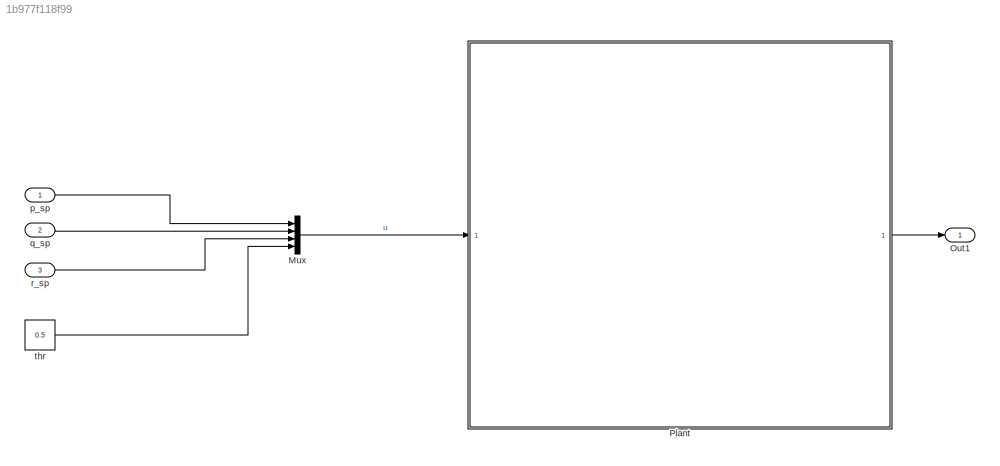
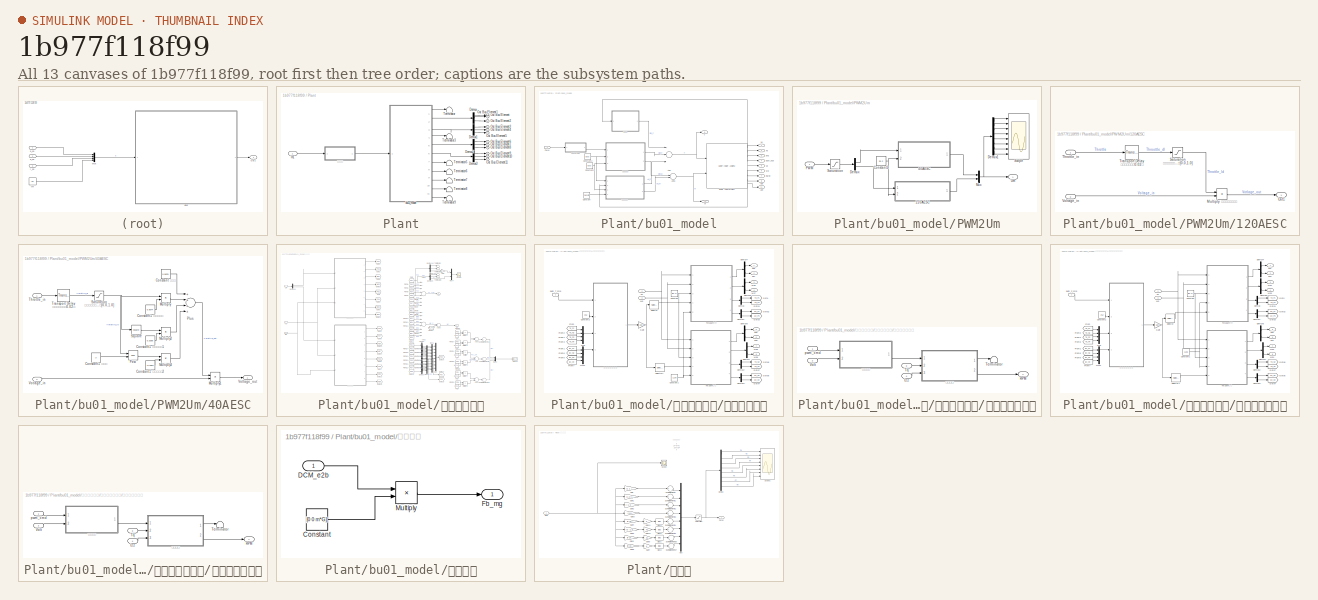
[diagram: thumbnail index - all 13 canvases of the model, root first then tree order]
MODEL slx_1b977f118f99
KIND model
CONFIG AbsTol = auto
CONFIG EnableMultiTasking = off
CONFIG FixedStep = 0.001
CONFIG MaxStep = auto
CONFIG MinStep = auto
CONFIG RelTol = 1e-3
CONFIG SampleTimeConstraint = Unconstrained
CONFIG Solver = FixedStepAuto
CONFIG SolverName = FixedStepAuto
CONFIG StartTime = 0.0
CONFIG StopTime = 10
WORKSPACE source: MAT-file member
WORKSPACE B1 = 0.0229925610147
BLOCK [Mux] Mux
  DisplayOption = bar
  Ports = [4, 1]
BLOCK [Outport] Out1
  IconDisplay = Port number
BLOCK [SubSystem] Plant
  Ports = [1, 1]
  RequestExecContextInheritance = off
BLOCK [Demux] Plant/Demux
  DisplayOption = bar
  Outputs = 3
  Ports = [1, 3]
BLOCK [Demux] Plant/Demux1
  DisplayOption = bar
  Outputs = 3
  Ports = [1, 3]
BLOCK [Demux] Plant/Demux2
  DisplayOption = bar
  Outputs = 3
  Ports = [1, 3]
BLOCK [Demux] Plant/Demux3
  DisplayOption = bar
  Outputs = 3
  Ports = [1, 3]
BLOCK [Inport] Plant/In1
  IconDisplay = Port number
BLOCK [Outport] Plant/Out Bus Element
  IconDisplay = Port number
BLOCK [Outport] Plant/Out Bus Element1
  IconDisplay = Port number
BLOCK [Outport] Plant/Out Bus Element10
  IconDisplay = Port number
BLOCK [Outport] Plant/Out Bus Element11
  IconDisplay = Port number
BLOCK [Outport] Plant/Out Bus Element2
  IconDisplay = Port number
BLOCK [Outport] Plant/Out Bus Element3
  IconDisplay = Port number
BLOCK [Outport] Plant/Out Bus Element4
  IconDisplay = Port number
BLOCK [Outport] Plant/Out Bus Element5
  IconDisplay = Port number
BLOCK [Outport] Plant/Out Bus Element6
  IconDisplay = Port number
BLOCK [Outport] Plant/Out Bus Element7
  IconDisplay = Port number
BLOCK [Outport] Plant/Out Bus Element8
  IconDisplay = Port number
BLOCK [Outport] Plant/Out Bus Element9
  IconDisplay = Port number
BLOCK [Terminator] Plant/Terminator
BLOCK [Terminator] Plant/Terminator3
BLOCK [Terminator] Plant/Terminator5
BLOCK [Terminator] Plant/Terminator6
BLOCK [Terminator] Plant/Terminator7
BLOCK [Terminator] Plant/Terminator8
BLOCK [Terminator] Plant/Terminator9
BLOCK [SubSystem] Plant/bu01_model
  Ports = [1, 11]
  RequestExecContextInheritance = off
BLOCK [Reference] Plant/bu01_model/6DOF (Quaternion)  REF=shared6dof/6DOF (Euler Angles)
  Ports = [2, 9]
  SourceBlock = shared6dof/6DOF (Euler Angles)
  SourceProductBaseCode = AE
  SourceProductName = Aerospace Blockset
  SourceType = 6DOF EoM (Body Axis)
BLOCK [Outport] Plant/bu01_model/Abb
  IconDisplay = Port number
  Port = 8
BLOCK [Outport] Plant/bu01_model/Abe
  IconDisplay = Port number
  Port = 11
BLOCK [Sum] Plant/bu01_model/Add
  InputSameDT = off
  Inputs = 3
  OutDataTypeStr = Inherit: Inherit via internal rule
  Ports = [3, 1]
  SaturateOnIntegerOverflow = off
BLOCK [Sum] Plant/bu01_model/Add1
  InputSameDT = off
  OutDataTypeStr = Inherit: Inherit via internal rule
  Ports = [2, 1]
  SaturateOnIntegerOverflow = off
BLOCK [Constant] Plant/bu01_model/Constant
  Value = Density
BLOCK [Constant] Plant/bu01_model/Constant1
  Value = [0 0 0]
BLOCK [Constant] Plant/bu01_model/Constant2
  Value = [0 0 0]
BLOCK [Outport] Plant/bu01_model/DCM_e2b
  IconDisplay = Port number
  Port = 4
BLOCK [Outport] Plant/bu01_model/M
  IconDisplay = Port number
  Port = 10
BLOCK [Inport] Plant/bu01_model/PWM
  IconDisplay = Port number
BLOCK [SubSystem] Plant/bu01_model/PWM2Um
  Ports = [1, 1]
  RequestExecContextInheritance = off
BLOCK [SubSystem] Plant/bu01_model/PWM2Um/120AESC
  Ports = [2, 1]
  RequestExecContextInheritance = off
BLOCK [Product] Plant/bu01_model/PWM2Um/120AESC/Multiply 线性调节输出电压
  InputSameDT = off
  OutDataTypeStr = Inherit: Inherit via internal rule
  Ports = [2, 1]
  RndMeth = Floor
  SaturateOnIntegerOverflow = off
BLOCK [Outport] Plant/bu01_model/PWM2Um/120AESC/Out1
  IconDisplay = Port number
BLOCK [Saturate] Plant/bu01_model/PWM2Um/120AESC/Saturation 限制油门最大最小值[0.0,1.0]
  InputPortMap = u0
  LowerLimit = 0.0
  Ports = [1, 1]
  UpperLimit = 1.0
BLOCK [Inport] Plant/bu01_model/PWM2Um/120AESC/Throttle_in
  IconDisplay = Port number
  PortDimensions = 4
BLOCK [TransportDelay] Plant/bu01_model/PWM2Um/120AESC/Transport Delay 模拟电调纯延时0.02秒
  DelayTime = 0.02
  Ports = [1, 1]
BLOCK [Inport] Plant/bu01_model/PWM2Um/120AESC/Voltage_in
  IconDisplay = Port number
  Port = 2
BLOCK [SubSystem] Plant/bu01_model/PWM2Um/40AESC
  Ports = [2, 1]
  RequestExecContextInheritance = off
BLOCK [Constant] Plant/bu01_model/PWM2Um/40AESC/Constant 常数项
  Value = 0.0629
BLOCK [Constant] Plant/bu01_model/PWM2Um/40AESC/Constant1 一次项系数
  Value = 0.9074
BLOCK [Constant] Plant/bu01_model/PWM2Um/40AESC/Constant1 三次项系数2
  Value = -0.2904
BLOCK [Constant] Plant/bu01_model/PWM2Um/40AESC/Constant1 二次项系数1
  Value = 0.3398
BLOCK [Constant] Plant/bu01_model/PWM2Um/40AESC/Constant1 幂级数
  Value = 3
BLOCK [Product] Plant/bu01_model/PWM2Um/40AESC/Multiply
  InputSameDT = off
  OutDataTypeStr = Inherit: Inherit via internal rule
  Ports = [2, 1]
  RndMeth = Floor
  SaturateOnIntegerOverflow = off
BLOCK [Product] Plant/bu01_model/PWM2Um/40AESC/Multiply1
  InputSameDT = off
  OutDataTypeStr = Inherit: Inherit via internal rule
  Ports = [2, 1]
  RndMeth = Floor
  SaturateOnIntegerOverflow = off
BLOCK [Product] Plant/bu01_model/PWM2Um/40AESC/Multiply2
  InputSameDT = off
  OutDataTypeStr = Inherit: Inherit via internal rule
  Ports = [2, 1]
  RndMeth = Floor
  SaturateOnIntegerOverflow = off
BLOCK [Product] Plant/bu01_model/PWM2Um/40AESC/Multiply3
  InputSameDT = off
  OutDataTypeStr = Inherit: Inherit via internal rule
  Ports = [2, 1]
  RndMeth = Floor
  SaturateOnIntegerOverflow = off
BLOCK [Sum] Plant/bu01_model/PWM2Um/40AESC/Plus
  InputSameDT = off
  Inputs = ++++
  OutDataTypeStr = Inherit: Inherit via internal rule
  Ports = [4, 1]
  SaturateOnIntegerOverflow = off
BLOCK [Math] Plant/bu01_model/PWM2Um/40AESC/Pow
  Operator = pow
  Ports = [2, 1]
  RndMeth = Zero
BLOCK [Saturate] Plant/bu01_model/PWM2Um/40AESC/Saturation 限制油门最大最小值[0.0,1.0]
  InputPortMap = u0
  LowerLimit = 0.0
  Ports = [1, 1]
  UpperLimit = 1.0
BLOCK [Math] Plant/bu01_model/PWM2Um/40AESC/Square
  Operator = square
  Ports = [1, 1]
BLOCK [Inport] Plant/bu01_model/PWM2Um/40AESC/Throttle_in
  IconDisplay = Port number
  PortDimensions = 4
BLOCK [TransportDelay] Plant/bu01_model/PWM2Um/40AESC/Transport Delay 模拟电调纯延时0.02秒
  DelayTime = 0.02
  Ports = [1, 1]
BLOCK [Inport] Plant/bu01_model/PWM2Um/40AESC/Votlage_in
  IconDisplay = Port number
  Port = 2
BLOCK [Outport] Plant/bu01_model/PWM2Um/40AESC/Votlage_out
  IconDisplay = Port number
BLOCK [Constant] Plant/bu01_model/PWM2Um/Constant2
  Value = 25.2
BLOCK [Demux] Plant/bu01_model/PWM2Um/Demux
  DisplayOption = bar
  Outputs = 2
  Ports = [1, 2]
BLOCK [Demux] Plant/bu01_model/PWM2Um/Demux1
  DisplayOption = bar
  Outputs = 8
  Ports = [1, 8]
BLOCK [Mux] Plant/bu01_model/PWM2Um/Mux
  DisplayOption = bar
  Inputs = 2
  Ports = [2, 1]
BLOCK [Inport] Plant/bu01_model/PWM2Um/PWM
  IconDisplay = Port number
BLOCK [Saturate] Plant/bu01_model/PWM2Um/Saturation
  InputPortMap = u0
  LowerLimit = 0
  Ports = [1, 1]
  UpperLimit = 1
BLOCK [Scope] Plant/bu01_model/PWM2Um/Scope
  Floating = off
  NumInputPorts = 8
  Ports = [8]
  ScopeSpecificationString = Simulink.scopes.TimeScopeBlockCfg('CurrentConfiguration', extmgr.ConfigurationSet(extmgr.Configuration('Core','General UI',true),extmgr.Configuration('Core','Source UI',true),extmgr.Configuration('Sources','WiredSimulink',true,'DataLoggingVariableName','ScopeData2'),extmgr.Configuration('Visuals','Time Domain',true,'SerializedDisplays',{struct('MinYLimReal','0.00268','MaxYLimReal','15.8267','YLabe...<+6317ch>
BLOCK [Outport] Plant/bu01_model/PWM2Um/Um
  IconDisplay = Port number
BLOCK [Outport] Plant/bu01_model/T
  IconDisplay = Port number
  Port = 9
BLOCK [Outport] Plant/bu01_model/Vb
  IconDisplay = Port number
  Port = 5
BLOCK [Outport] Plant/bu01_model/Ve
  IconDisplay = Port number
BLOCK [Outport] Plant/bu01_model/Wb
  IconDisplay = Port number
  Port = 6
BLOCK [Outport] Plant/bu01_model/Xe
  IconDisplay = Port number
  Port = 2
BLOCK [Outport] Plant/bu01_model/ang
  IconDisplay = Port number
  Port = 3
BLOCK [Outport] Plant/bu01_model/dw//dt
  IconDisplay = Port number
  Port = 7
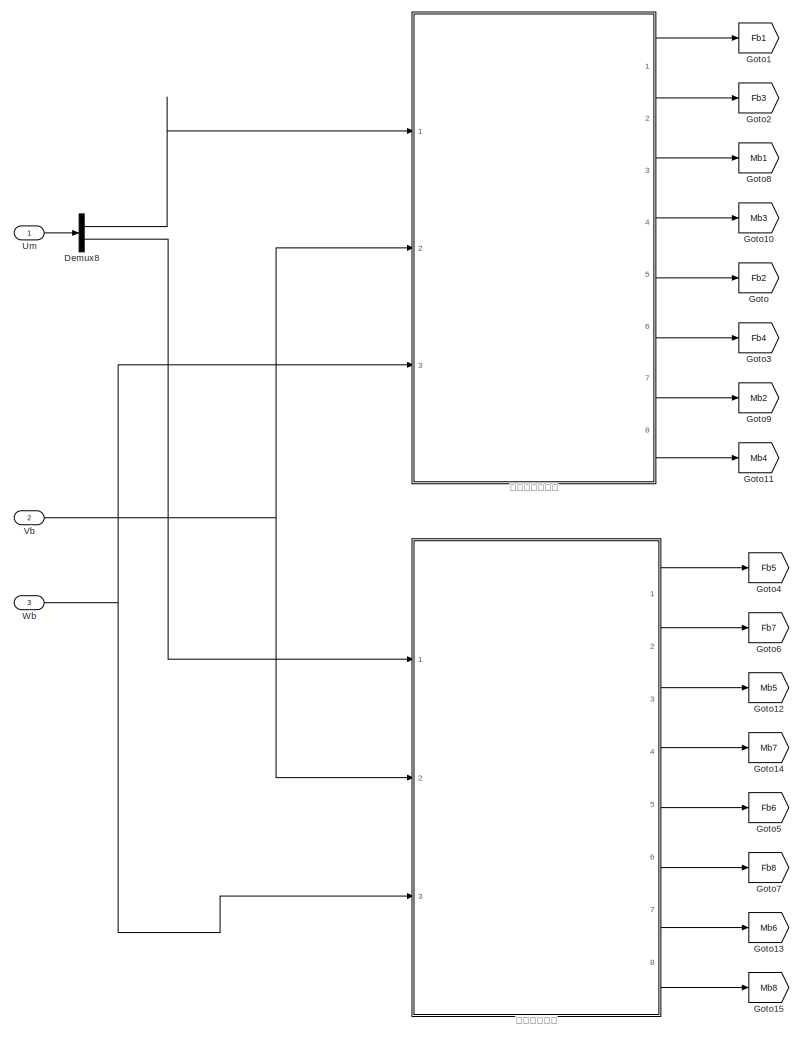
[diagram: Plant/bu01_model/动力系统模型 - part 1/2, left side, full height]
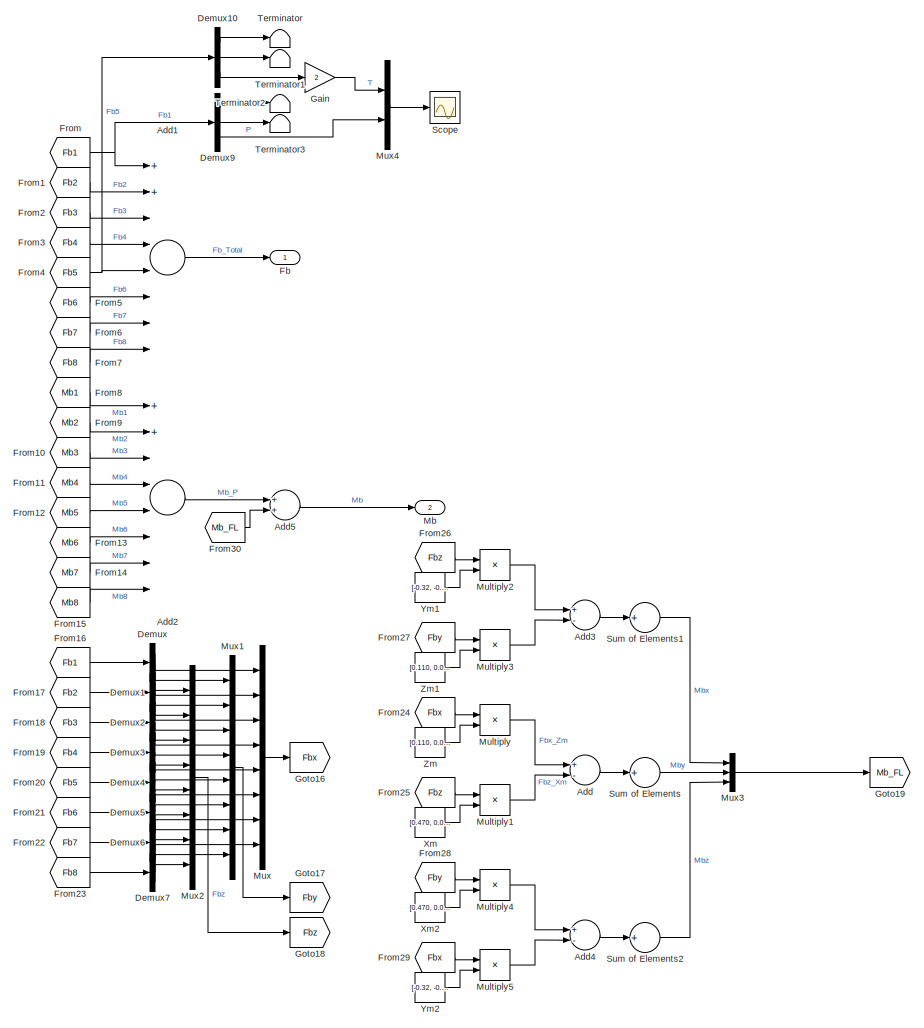
[diagram: Plant/bu01_model/动力系统模型 - part 2/2, right side, full height]
BLOCK [SubSystem] Plant/bu01_model/动力系统模型
  Ports = [3, 2]
  RequestExecContextInheritance = off
BLOCK [Sum] Plant/bu01_model/动力系统模型/Add
  InputSameDT = off
  Inputs = +-
  OutDataTypeStr = Inherit: Inherit via internal rule
  Ports = [2, 1]
  SaturateOnIntegerOverflow = off
BLOCK [Sum] Plant/bu01_model/动力系统模型/Add1
  InputSameDT = off
  Inputs = 8
  OutDataTypeStr = Inherit: Inherit via internal rule
  Ports = [8, 1]
  SaturateOnIntegerOverflow = off
BLOCK [Sum] Plant/bu01_model/动力系统模型/Add2
  InputSameDT = off
  Inputs = 8
  OutDataTypeStr = Inherit: Inherit via internal rule
  Ports = [8, 1]
  SaturateOnIntegerOverflow = off
BLOCK [Sum] Plant/bu01_model/动力系统模型/Add3
  InputSameDT = off
  Inputs = +-
  OutDataTypeStr = Inherit: Inherit via internal rule
  Ports = [2, 1]
  SaturateOnIntegerOverflow = off
BLOCK [Sum] Plant/bu01_model/动力系统模型/Add4
  InputSameDT = off
  Inputs = +-
  OutDataTypeStr = Inherit: Inherit via internal rule
  Ports = [2, 1]
  SaturateOnIntegerOverflow = off
BLOCK [Sum] Plant/bu01_model/动力系统模型/Add5
  InputSameDT = off
  OutDataTypeStr = Inherit: Inherit via internal rule
  Ports = [2, 1]
  SaturateOnIntegerOverflow = off
BLOCK [Demux] Plant/bu01_model/动力系统模型/Demux
  DisplayOption = bar
  Outputs = 3
  Ports = [1, 3]
BLOCK [Demux] Plant/bu01_model/动力系统模型/Demux1
  DisplayOption = bar
  Outputs = 3
  Ports = [1, 3]
BLOCK [Demux] Plant/bu01_model/动力系统模型/Demux10
  DisplayOption = bar
  Outputs = 3
  Ports = [1, 3]
BLOCK [Demux] Plant/bu01_model/动力系统模型/Demux2
  DisplayOption = bar
  Outputs = 3
  Ports = [1, 3]
BLOCK [Demux] Plant/bu01_model/动力系统模型/Demux3
  DisplayOption = bar
  Outputs = 3
  Ports = [1, 3]
BLOCK [Demux] Plant/bu01_model/动力系统模型/Demux4
  DisplayOption = bar
  Outputs = 3
  Ports = [1, 3]
BLOCK [Demux] Plant/bu01_model/动力系统模型/Demux5
  DisplayOption = bar
  Outputs = 3
  Ports = [1, 3]
BLOCK [Demux] Plant/bu01_model/动力系统模型/Demux6
  DisplayOption = bar
  Outputs = 3
  Ports = [1, 3]
BLOCK [Demux] Plant/bu01_model/动力系统模型/Demux7
  DisplayOption = bar
  Outputs = 3
  Ports = [1, 3]
BLOCK [Demux] Plant/bu01_model/动力系统模型/Demux8
  DisplayOption = bar
  Outputs = 2
  Ports = [1, 2]
BLOCK [Demux] Plant/bu01_model/动力系统模型/Demux9
  DisplayOption = bar
  Outputs = 3
  Ports = [1, 3]
BLOCK [Outport] Plant/bu01_model/动力系统模型/Fb
  IconDisplay = Port number
BLOCK [From] Plant/bu01_model/动力系统模型/From
  GotoTag = Fb1
BLOCK [From] Plant/bu01_model/动力系统模型/From1
  GotoTag = Fb2
BLOCK [From] Plant/bu01_model/动力系统模型/From10
  GotoTag = Mb3
BLOCK [From] Plant/bu01_model/动力系统模型/From11
  GotoTag = Mb4
BLOCK [From] Plant/bu01_model/动力系统模型/From12
  GotoTag = Mb5
BLOCK [From] Plant/bu01_model/动力系统模型/From13
  GotoTag = Mb6
BLOCK [From] Plant/bu01_model/动力系统模型/From14
  GotoTag = Mb7
BLOCK [From] Plant/bu01_model/动力系统模型/From15
  GotoTag = Mb8
BLOCK [From] Plant/bu01_model/动力系统模型/From16
  GotoTag = Fb1
BLOCK [From] Plant/bu01_model/动力系统模型/From17
  GotoTag = Fb2
BLOCK [From] Plant/bu01_model/动力系统模型/From18
  GotoTag = Fb3
BLOCK [From] Plant/bu01_model/动力系统模型/From19
  GotoTag = Fb4
BLOCK [From] Plant/bu01_model/动力系统模型/From2
  GotoTag = Fb3
BLOCK [From] Plant/bu01_model/动力系统模型/From20
  GotoTag = Fb5
BLOCK [From] Plant/bu01_model/动力系统模型/From21
  GotoTag = Fb6
BLOCK [From] Plant/bu01_model/动力系统模型/From22
  GotoTag = Fb7
BLOCK [From] Plant/bu01_model/动力系统模型/From23
  GotoTag = Fb8
BLOCK [From] Plant/bu01_model/动力系统模型/From24
  GotoTag = Fbx
BLOCK [From] Plant/bu01_model/动力系统模型/From25
  GotoTag = Fbz
BLOCK [From] Plant/bu01_model/动力系统模型/From26
  GotoTag = Fbz
BLOCK [From] Plant/bu01_model/动力系统模型/From27
  GotoTag = Fby
BLOCK [From] Plant/bu01_model/动力系统模型/From28
  GotoTag = Fby
BLOCK [From] Plant/bu01_model/动力系统模型/From29
  GotoTag = Fbx
BLOCK [From] Plant/bu01_model/动力系统模型/From3
  GotoTag = Fb4
BLOCK [From] Plant/bu01_model/动力系统模型/From30
  GotoTag = Mb_FL
BLOCK [From] Plant/bu01_model/动力系统模型/From4
  GotoTag = Fb5
BLOCK [From] Plant/bu01_model/动力系统模型/From5
  GotoTag = Fb6
BLOCK [From] Plant/bu01_model/动力系统模型/From6
  GotoTag = Fb7
BLOCK [From] Plant/bu01_model/动力系统模型/From7
  GotoTag = Fb8
BLOCK [From] Plant/bu01_model/动力系统模型/From8
  GotoTag = Mb1
BLOCK [From] Plant/bu01_model/动力系统模型/From9
  GotoTag = Mb2
BLOCK [Gain] Plant/bu01_model/动力系统模型/Gain
  Gain = 2
  OutDataTypeStr = Inherit: Inherit via internal rule
  ParamDataTypeStr = Inherit: Inherit via internal rule
  SaturateOnIntegerOverflow = off
BLOCK [Goto] Plant/bu01_model/动力系统模型/Goto
  GotoTag = Fb2
BLOCK [Goto] Plant/bu01_model/动力系统模型/Goto1
  GotoTag = Fb1
BLOCK [Goto] Plant/bu01_model/动力系统模型/Goto10
  GotoTag = Mb3
BLOCK [Goto] Plant/bu01_model/动力系统模型/Goto11
  GotoTag = Mb4
BLOCK [Goto] Plant/bu01_model/动力系统模型/Goto12
  GotoTag = Mb5
BLOCK [Goto] Plant/bu01_model/动力系统模型/Goto13
  GotoTag = Mb6
BLOCK [Goto] Plant/bu01_model/动力系统模型/Goto14
  GotoTag = Mb7
BLOCK [Goto] Plant/bu01_model/动力系统模型/Goto15
  GotoTag = Mb8
BLOCK [Goto] Plant/bu01_model/动力系统模型/Goto16
  GotoTag = Fbx
BLOCK [Goto] Plant/bu01_model/动力系统模型/Goto17
  GotoTag = Fby
BLOCK [Goto] Plant/bu01_model/动力系统模型/Goto18
  GotoTag = Fbz
BLOCK [Goto] Plant/bu01_model/动力系统模型/Goto19
  GotoTag = Mb_FL
BLOCK [Goto] Plant/bu01_model/动力系统模型/Goto2
  GotoTag = Fb3
BLOCK [Goto] Plant/bu01_model/动力系统模型/Goto3
  GotoTag = Fb4
BLOCK [Goto] Plant/bu01_model/动力系统模型/Goto4
  GotoTag = Fb5
BLOCK [Goto] Plant/bu01_model/动力系统模型/Goto5
  GotoTag = Fb6
BLOCK [Goto] Plant/bu01_model/动力系统模型/Goto6
  GotoTag = Fb7
BLOCK [Goto] Plant/bu01_model/动力系统模型/Goto7
  GotoTag = Fb8
BLOCK [Goto] Plant/bu01_model/动力系统模型/Goto8
  GotoTag = Mb1
BLOCK [Goto] Plant/bu01_model/动力系统模型/Goto9
  GotoTag = Mb2
BLOCK [Outport] Plant/bu01_model/动力系统模型/Mb
  IconDisplay = Port number
  Port = 2
BLOCK [Product] Plant/bu01_model/动力系统模型/Multiply
  InputSameDT = off
  OutDataTypeStr = Inherit: Inherit via internal rule
  Ports = [2, 1]
  RndMeth = Floor
  SaturateOnIntegerOverflow = off
BLOCK [Product] Plant/bu01_model/动力系统模型/Multiply1
  InputSameDT = off
  OutDataTypeStr = Inherit: Inherit via internal rule
  Ports = [2, 1]
  RndMeth = Floor
  SaturateOnIntegerOverflow = off
BLOCK [Product] Plant/bu01_model/动力系统模型/Multiply2
  InputSameDT = off
  OutDataTypeStr = Inherit: Inherit via internal rule
  Ports = [2, 1]
  RndMeth = Floor
  SaturateOnIntegerOverflow = off
BLOCK [Product] Plant/bu01_model/动力系统模型/Multiply3
  InputSameDT = off
  OutDataTypeStr = Inherit: Inherit via internal rule
  Ports = [2, 1]
  RndMeth = Floor
  SaturateOnIntegerOverflow = off
BLOCK [Product] Plant/bu01_model/动力系统模型/Multiply4
  InputSameDT = off
  OutDataTypeStr = Inherit: Inherit via internal rule
  Ports = [2, 1]
  RndMeth = Floor
  SaturateOnIntegerOverflow = off
BLOCK [Product] Plant/bu01_model/动力系统模型/Multiply5
  InputSameDT = off
  OutDataTypeStr = Inherit: Inherit via internal rule
  Ports = [2, 1]
  RndMeth = Floor
  SaturateOnIntegerOverflow = off
BLOCK [Mux] Plant/bu01_model/动力系统模型/Mux
  DisplayOption = bar
  Inputs = 8
  Ports = [8, 1]
BLOCK [Mux] Plant/bu01_model/动力系统模型/Mux1
  DisplayOption = bar
  Inputs = 8
  Ports = [8, 1]
BLOCK [Mux] Plant/bu01_model/动力系统模型/Mux2
  DisplayOption = bar
  Inputs = 8
  Ports = [8, 1]
BLOCK [Mux] Plant/bu01_model/动力系统模型/Mux3
  DisplayOption = bar
  Inputs = 3
  Ports = [3, 1]
BLOCK [Mux] Plant/bu01_model/动力系统模型/Mux4
  DisplayOption = bar
  Inputs = 2
  Ports = [2, 1]
BLOCK [Scope] Plant/bu01_model/动力系统模型/Scope
  Floating = off
  NumInputPorts = 1
  Ports = [1]
  ScopeSpecificationString = Simulink.scopes.TimeScopeBlockCfg('CurrentConfiguration', extmgr.ConfigurationSet(extmgr.Configuration('Core','General UI',true),extmgr.Configuration('Core','Source UI',true),extmgr.Configuration('Sources','WiredSimulink',true),extmgr.Configuration('Visuals','Time Domain',true,'SerializedDisplays',{struct('MinYLimReal','-68.43412','MaxYLimReal','1.55435','YLabelReal','','MinYLimMag','0.00000','Max...<+1734ch>
BLOCK [Sum] Plant/bu01_model/动力系统模型/Sum of Elements
  InputSameDT = off
  Inputs = +
  OutDataTypeStr = Inherit: Inherit via internal rule
  Ports = [1, 1]
  SaturateOnIntegerOverflow = off
BLOCK [Sum] Plant/bu01_model/动力系统模型/Sum of Elements1
  InputSameDT = off
  Inputs = +
  OutDataTypeStr = Inherit: Inherit via internal rule
  Ports = [1, 1]
  SaturateOnIntegerOverflow = off
BLOCK [Sum] Plant/bu01_model/动力系统模型/Sum of Elements2
  InputSameDT = off
  Inputs = +
  OutDataTypeStr = Inherit: Inherit via internal rule
  Ports = [1, 1]
  SaturateOnIntegerOverflow = off
BLOCK [Terminator] Plant/bu01_model/动力系统模型/Terminator
BLOCK [Terminator] Plant/bu01_model/动力系统模型/Terminator1
BLOCK [Terminator] Plant/bu01_model/动力系统模型/Terminator2
BLOCK [Terminator] Plant/bu01_model/动力系统模型/Terminator3
BLOCK [Inport] Plant/bu01_model/动力系统模型/Um 
  IconDisplay = Port number
BLOCK [Inport] Plant/bu01_model/动力系统模型/Vb
  IconDisplay = Port number
  Port = 2
BLOCK [Inport] Plant/bu01_model/动力系统模型/Wb
  IconDisplay = Port number
  Port = 3
BLOCK [Constant] Plant/bu01_model/动力系统模型/Xm
  Value = [0.470, 0.000, 0.00, 0.47, -0.467, -0.450, -0.45, -0.467]
BLOCK [Constant] Plant/bu01_model/动力系统模型/Xm2
  Value = [0.470, 0.000, 0.00, 0.47, -0.467, -0.450, -0.45, -0.467]
BLOCK [Constant] Plant/bu01_model/动力系统模型/Ym1
  Value = [-0.32, -0.32, 0.32, 0.32, -0.236, -0.129, 0.129, 0.2360]
BLOCK [Constant] Plant/bu01_model/动力系统模型/Ym2
  Value = [-0.32, -0.32, 0.32, 0.32, -0.236, -0.129, 0.129, 0.2360]
BLOCK [Constant] Plant/bu01_model/动力系统模型/Zm
  Value = [0.110, 0.080, 0.08, 0.11, 0.0040, 0.0240, 0.024, 0.0040]
BLOCK [Constant] Plant/bu01_model/动力系统模型/Zm1
  Value = [0.110, 0.080, 0.08, 0.11, 0.0040, 0.0240, 0.024, 0.0040]
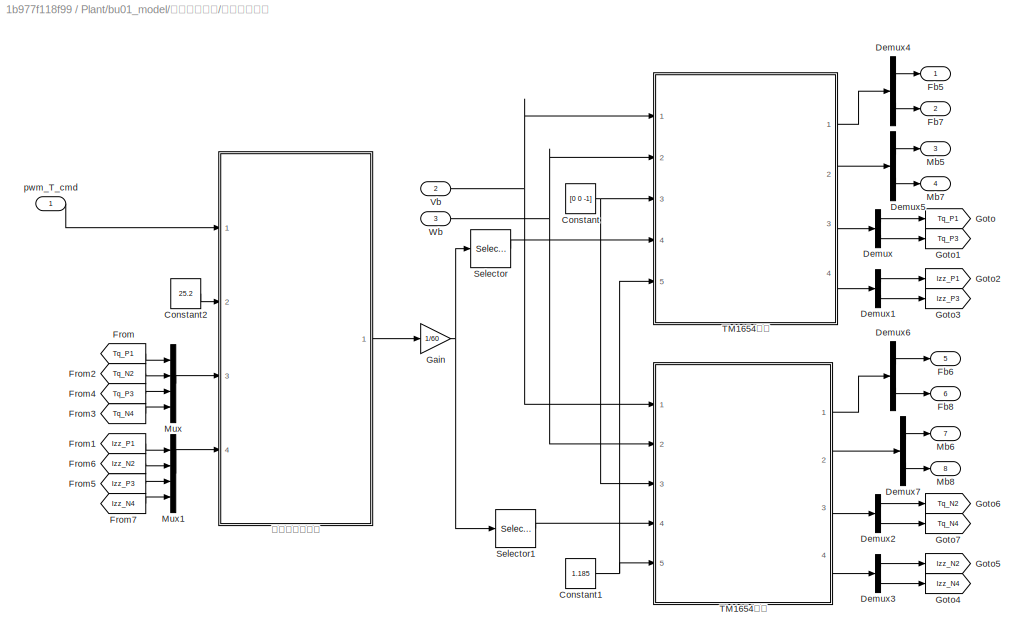
BLOCK [SubSystem] Plant/bu01_model/动力系统模型/涵道动力模型
  Ports = [3, 8]
  RequestExecContextInheritance = off
BLOCK [Constant] Plant/bu01_model/动力系统模型/涵道动力模型/Constant
  Value = [0 0 -1]
BLOCK [Constant] Plant/bu01_model/动力系统模型/涵道动力模型/Constant1
  Value = 1.185
BLOCK [Constant] Plant/bu01_model/动力系统模型/涵道动力模型/Constant2
  Value = 25.2
BLOCK [Demux] Plant/bu01_model/动力系统模型/涵道动力模型/Demux
  DisplayOption = bar
  Outputs = 2
  Ports = [1, 2]
BLOCK [Demux] Plant/bu01_model/动力系统模型/涵道动力模型/Demux1
  DisplayOption = bar
  Outputs = 2
  Ports = [1, 2]
BLOCK [Demux] Plant/bu01_model/动力系统模型/涵道动力模型/Demux2
  DisplayOption = bar
  Outputs = 2
  Ports = [1, 2]
BLOCK [Demux] Plant/bu01_model/动力系统模型/涵道动力模型/Demux3
  DisplayOption = bar
  Outputs = 2
  Ports = [1, 2]
BLOCK [Demux] Plant/bu01_model/动力系统模型/涵道动力模型/Demux4
  DisplayOption = bar
  Outputs = 2
  Ports = [1, 2]
BLOCK [Demux] Plant/bu01_model/动力系统模型/涵道动力模型/Demux5
  DisplayOption = bar
  Outputs = 2
  Ports = [1, 2]
BLOCK [Demux] Plant/bu01_model/动力系统模型/涵道动力模型/Demux6
  DisplayOption = bar
  Outputs = 2
  Ports = [1, 2]
BLOCK [Demux] Plant/bu01_model/动力系统模型/涵道动力模型/Demux7
  DisplayOption = bar
  Outputs = 2
  Ports = [1, 2]
BLOCK [Outport] Plant/bu01_model/动力系统模型/涵道动力模型/Fb5
  IconDisplay = Port number
BLOCK [Outport] Plant/bu01_model/动力系统模型/涵道动力模型/Fb6
  IconDisplay = Port number
  Port = 5
BLOCK [Outport] Plant/bu01_model/动力系统模型/涵道动力模型/Fb7
  IconDisplay = Port number
  Port = 2
BLOCK [Outport] Plant/bu01_model/动力系统模型/涵道动力模型/Fb8
  IconDisplay = Port number
  Port = 6
BLOCK [From] Plant/bu01_model/动力系统模型/涵道动力模型/From
  GotoTag = Tq_P1
BLOCK [From] Plant/bu01_model/动力系统模型/涵道动力模型/From1
  GotoTag = Izz_P1
BLOCK [From] Plant/bu01_model/动力系统模型/涵道动力模型/From2
  GotoTag = Tq_N2
BLOCK [From] Plant/bu01_model/动力系统模型/涵道动力模型/From3
  GotoTag = Tq_N4
BLOCK [From] Plant/bu01_model/动力系统模型/涵道动力模型/From4
  GotoTag = Tq_P3
BLOCK [From] Plant/bu01_model/动力系统模型/涵道动力模型/From5
  GotoTag = Izz_P3
BLOCK [From] Plant/bu01_model/动力系统模型/涵道动力模型/From6
  GotoTag = Izz_N2
BLOCK [From] Plant/bu01_model/动力系统模型/涵道动力模型/From7
  GotoTag = Izz_N4
BLOCK [Gain] Plant/bu01_model/动力系统模型/涵道动力模型/Gain
  Gain = 1/60
  OutDataTypeStr = Inherit: Inherit via internal rule
  ParamDataTypeStr = Inherit: Inherit via internal rule
  SaturateOnIntegerOverflow = off
BLOCK [Goto] Plant/bu01_model/动力系统模型/涵道动力模型/Goto
  GotoTag = Tq_P1
BLOCK [Goto] Plant/bu01_model/动力系统模型/涵道动力模型/Goto1
  GotoTag = Tq_P3
BLOCK [Goto] Plant/bu01_model/动力系统模型/涵道动力模型/Goto2
  GotoTag = Izz_P1
BLOCK [Goto] Plant/bu01_model/动力系统模型/涵道动力模型/Goto3
  GotoTag = Izz_P3
BLOCK [Goto] Plant/bu01_model/动力系统模型/涵道动力模型/Goto4
  GotoTag = Izz_N4
BLOCK [Goto] Plant/bu01_model/动力系统模型/涵道动力模型/Goto5
  GotoTag = Izz_N2
BLOCK [Goto] Plant/bu01_model/动力系统模型/涵道动力模型/Goto6
  GotoTag = Tq_N2
BLOCK [Goto] Plant/bu01_model/动力系统模型/涵道动力模型/Goto7
  GotoTag = Tq_N4
BLOCK [Outport] Plant/bu01_model/动力系统模型/涵道动力模型/Mb5
  IconDisplay = Port number
  Port = 3
BLOCK [Outport] Plant/bu01_model/动力系统模型/涵道动力模型/Mb6
  IconDisplay = Port number
  Port = 7
BLOCK [Outport] Plant/bu01_model/动力系统模型/涵道动力模型/Mb7
  IconDisplay = Port number
  Port = 4
BLOCK [Outport] Plant/bu01_model/动力系统模型/涵道动力模型/Mb8
  IconDisplay = Port number
  Port = 8
BLOCK [Mux] Plant/bu01_model/动力系统模型/涵道动力模型/Mux
  DisplayOption = bar
  Ports = [4, 1]
BLOCK [Mux] Plant/bu01_model/动力系统模型/涵道动力模型/Mux1
  DisplayOption = bar
  Ports = [4, 1]
BLOCK [Selector] Plant/bu01_model/动力系统模型/涵道动力模型/Selector
  IndexOptions = Index vector (dialog)
  Indices = [1 3]
  InputPortWidth = 4
  OutputSizes = 1
  Ports = [1, 1]
BLOCK [Selector] Plant/bu01_model/动力系统模型/涵道动力模型/Selector1
  IndexOptions = Index vector (dialog)
  Indices = [2 4]
  InputPortWidth = 4
  OutputSizes = 1
  Ports = [1, 1]
BLOCK [ModelReference] Plant/bu01_model/动力系统模型/涵道动力模型/TM1654反桨
  ModelNameDialog = PF70mmDuctFanN.slx
  ModelReferenceVersion = 1.59
  Ports = [5, 4]
BLOCK [ModelReference] Plant/bu01_model/动力系统模型/涵道动力模型/TM1654正桨
  ModelNameDialog = PF70mmDuctFanP.slx
  ModelReferenceVersion = 1.61
  Ports = [5, 4]
BLOCK [Inport] Plant/bu01_model/动力系统模型/涵道动力模型/Vb
  IconDisplay = Port number
  Port = 2
BLOCK [Inport] Plant/bu01_model/动力系统模型/涵道动力模型/Wb
  IconDisplay = Port number
  Port = 3
BLOCK [Inport] Plant/bu01_model/动力系统模型/涵道动力模型/pwm_T_cmd
  IconDisplay = Port number
BLOCK [SubSystem] Plant/bu01_model/动力系统模型/涵道动力模型/螺旋桨电机模型
  Ports = [4, 1]
  RequestExecContextInheritance = off
BLOCK [Inport] Plant/bu01_model/动力系统模型/涵道动力模型/螺旋桨电机模型/Izz
  IconDisplay = Port number
  Port = 4
BLOCK [Outport] Plant/bu01_model/动力系统模型/涵道动力模型/螺旋桨电机模型/RPM
  IconDisplay = Port number
BLOCK [Terminator] Plant/bu01_model/动力系统模型/涵道动力模型/螺旋桨电机模型/Terminator
BLOCK [Inport] Plant/bu01_model/动力系统模型/涵道动力模型/螺旋桨电机模型/Tq 
  IconDisplay = Port number
  Port = 3
BLOCK [Inport] Plant/bu01_model/动力系统模型/涵道动力模型/螺旋桨电机模型/Volt
  IconDisplay = Port number
  Port = 2
BLOCK [Inport] Plant/bu01_model/动力系统模型/涵道动力模型/螺旋桨电机模型/pwm_cmd
  IconDisplay = Port number
BLOCK [ModelReference] Plant/bu01_model/动力系统模型/涵道动力模型/螺旋桨电机模型/电机模型
  ModelNameDialog = PFKV2150.slx
  ModelReferenceVersion = 1.25
  Ports = [3, 2]
BLOCK [ModelReference] Plant/bu01_model/动力系统模型/涵道动力模型/螺旋桨电机模型/电调模型
  ModelNameDialog = Platinum120AV4.slx
  ModelReferenceVersion = 1.7
  Ports = [2, 1]
BLOCK [SubSystem] Plant/bu01_model/动力系统模型/螺旋桨动力模型
  Ports = [3, 8]
  RequestExecContextInheritance = off
BLOCK [Constant] Plant/bu01_model/动力系统模型/螺旋桨动力模型/Constant
  Value = [0 0 -1]
BLOCK [Constant] Plant/bu01_model/动力系统模型/螺旋桨动力模型/Constant1
  Value = 1.185
BLOCK [Constant] Plant/bu01_model/动力系统模型/螺旋桨动力模型/Constant2
  Value = 25.2
BLOCK [Demux] Plant/bu01_model/动力系统模型/螺旋桨动力模型/Demux
  DisplayOption = bar
  Outputs = 2
  Ports = [1, 2]
BLOCK [Demux] Plant/bu01_model/动力系统模型/螺旋桨动力模型/Demux1
  DisplayOption = bar
  Outputs = 2
  Ports = [1, 2]
BLOCK [Demux] Plant/bu01_model/动力系统模型/螺旋桨动力模型/Demux2
  DisplayOption = bar
  Outputs = 2
  Ports = [1, 2]
BLOCK [Demux] Plant/bu01_model/动力系统模型/螺旋桨动力模型/Demux3
  DisplayOption = bar
  Outputs = 2
  Ports = [1, 2]
BLOCK [Demux] Plant/bu01_model/动力系统模型/螺旋桨动力模型/Demux4
  DisplayOption = bar
  Outputs = 2
  Ports = [1, 2]
BLOCK [Demux] Plant/bu01_model/动力系统模型/螺旋桨动力模型/Demux5
  DisplayOption = bar
  Outputs = 2
  Ports = [1, 2]
BLOCK [Demux] Plant/bu01_model/动力系统模型/螺旋桨动力模型/Demux6
  DisplayOption = bar
  Outputs = 2
  Ports = [1, 2]
BLOCK [Demux] Plant/bu01_model/动力系统模型/螺旋桨动力模型/Demux7
  DisplayOption = bar
  Outputs = 2
  Ports = [1, 2]
BLOCK [Outport] Plant/bu01_model/动力系统模型/螺旋桨动力模型/Fb1
  IconDisplay = Port number
BLOCK [Outport] Plant/bu01_model/动力系统模型/螺旋桨动力模型/Fb2
  IconDisplay = Port number
  Port = 5
BLOCK [Outport] Plant/bu01_model/动力系统模型/螺旋桨动力模型/Fb3
  IconDisplay = Port number
  Port = 2
BLOCK [Outport] Plant/bu01_model/动力系统模型/螺旋桨动力模型/Fb4
  IconDisplay = Port number
  Port = 6
BLOCK [From] Plant/bu01_model/动力系统模型/螺旋桨动力模型/From
  GotoTag = Tq_P1
BLOCK [From] Plant/bu01_model/动力系统模型/螺旋桨动力模型/From1
  GotoTag = Izz_P1
BLOCK [From] Plant/bu01_model/动力系统模型/螺旋桨动力模型/From2
  GotoTag = Tq_N2
BLOCK [From] Plant/bu01_model/动力系统模型/螺旋桨动力模型/From3
  GotoTag = Tq_N4
BLOCK [From] Plant/bu01_model/动力系统模型/螺旋桨动力模型/From4
  GotoTag = Tq_P3
BLOCK [From] Plant/bu01_model/动力系统模型/螺旋桨动力模型/From5
  GotoTag = Izz_P3
BLOCK [From] Plant/bu01_model/动力系统模型/螺旋桨动力模型/From6
  GotoTag = Izz_N2
BLOCK [From] Plant/bu01_model/动力系统模型/螺旋桨动力模型/From7
  GotoTag = Izz_N4
BLOCK [Gain] Plant/bu01_model/动力系统模型/螺旋桨动力模型/Gain
  Gain = 1/60
  OutDataTypeStr = Inherit: Inherit via internal rule
  ParamDataTypeStr = Inherit: Inherit via internal rule
  SaturateOnIntegerOverflow = off
BLOCK [Goto] Plant/bu01_model/动力系统模型/螺旋桨动力模型/Goto
  GotoTag = Tq_P1
BLOCK [Goto] Plant/bu01_model/动力系统模型/螺旋桨动力模型/Goto1
  GotoTag = Tq_P3
BLOCK [Goto] Plant/bu01_model/动力系统模型/螺旋桨动力模型/Goto2
  GotoTag = Izz_P1
BLOCK [Goto] Plant/bu01_model/动力系统模型/螺旋桨动力模型/Goto3
  GotoTag = Izz_P3
BLOCK [Goto] Plant/bu01_model/动力系统模型/螺旋桨动力模型/Goto4
  GotoTag = Izz_N4
BLOCK [Goto] Plant/bu01_model/动力系统模型/螺旋桨动力模型/Goto5
  GotoTag = Izz_N2
BLOCK [Goto] Plant/bu01_model/动力系统模型/螺旋桨动力模型/Goto6
  GotoTag = Tq_N2
BLOCK [Goto] Plant/bu01_model/动力系统模型/螺旋桨动力模型/Goto7
  GotoTag = Tq_N4
BLOCK [Outport] Plant/bu01_model/动力系统模型/螺旋桨动力模型/Mb1
  IconDisplay = Port number
  Port = 3
BLOCK [Outport] Plant/bu01_model/动力系统模型/螺旋桨动力模型/Mb2
  IconDisplay = Port number
  Port = 7
BLOCK [Outport] Plant/bu01_model/动力系统模型/螺旋桨动力模型/Mb3
  IconDisplay = Port number
  Port = 4
BLOCK [Outport] Plant/bu01_model/动力系统模型/螺旋桨动力模型/Mb4
  IconDisplay = Port number
  Port = 8
BLOCK [Mux] Plant/bu01_model/动力系统模型/螺旋桨动力模型/Mux
  DisplayOption = bar
  Ports = [4, 1]
BLOCK [Mux] Plant/bu01_model/动力系统模型/螺旋桨动力模型/Mux1
  DisplayOption = bar
  Ports = [4, 1]
BLOCK [Selector] Plant/bu01_model/动力系统模型/螺旋桨动力模型/Selector
  IndexOptions = Index vector (dialog)
  Indices = [1 3]
  InputPortWidth = 4
  OutputSizes = 1
  Ports = [1, 1]
BLOCK [Selector] Plant/bu01_model/动力系统模型/螺旋桨动力模型/Selector1
  IndexOptions = Index vector (dialog)
  Indices = [2 4]
  InputPortWidth = 4
  OutputSizes = 1
  Ports = [1, 1]
BLOCK [ModelReference] Plant/bu01_model/动力系统模型/螺旋桨动力模型/TM1654反桨
  ModelNameDialog = TM1654N.slx
  ModelReferenceVersion = 1.83
  Ports = [5, 4]
BLOCK [ModelReference] Plant/bu01_model/动力系统模型/螺旋桨动力模型/TM1654正桨
  ModelNameDialog = TM1654P.slx
  ModelReferenceVersion = 1.98
  Ports = [5, 4]
BLOCK [Inport] Plant/bu01_model/动力系统模型/螺旋桨动力模型/Vb
  IconDisplay = Port number
  Port = 2
BLOCK [Inport] Plant/bu01_model/动力系统模型/螺旋桨动力模型/Wb
  IconDisplay = Port number
  Port = 3
BLOCK [Inport] Plant/bu01_model/动力系统模型/螺旋桨动力模型/pwm_P_cmd
  IconDisplay = Port number
BLOCK [SubSystem] Plant/bu01_model/动力系统模型/螺旋桨动力模型/螺旋桨电机模型
  Ports = [4, 1]
  RequestExecContextInheritance = off
BLOCK [Inport] Plant/bu01_model/动力系统模型/螺旋桨动力模型/螺旋桨电机模型/Izz
  IconDisplay = Port number
  Port = 4
BLOCK [Outport] Plant/bu01_model/动力系统模型/螺旋桨动力模型/螺旋桨电机模型/RPM
  IconDisplay = Port number
BLOCK [Terminator] Plant/bu01_model/动力系统模型/螺旋桨动力模型/螺旋桨电机模型/Terminator
BLOCK [Inport] Plant/bu01_model/动力系统模型/螺旋桨动力模型/螺旋桨电机模型/Tq 
  IconDisplay = Port number
  Port = 3
BLOCK [Inport] Plant/bu01_model/动力系统模型/螺旋桨动力模型/螺旋桨电机模型/Volt
  IconDisplay = Port number
  Port = 2
BLOCK [Inport] Plant/bu01_model/动力系统模型/螺旋桨动力模型/螺旋桨电机模型/pwm_cmd
  IconDisplay = Port number
BLOCK [ModelReference] Plant/bu01_model/动力系统模型/螺旋桨动力模型/螺旋桨电机模型/电机模型
  ModelNameDialog = TMU5KV400V2.slx
  ModelReferenceVersion = 1.30
  Ports = [3, 2]
BLOCK [ModelReference] Plant/bu01_model/动力系统模型/螺旋桨动力模型/螺旋桨电机模型/电调模型
  ModelNameDialog = APHLA40AFOCV2.slx
  ModelReferenceVersion = 1.7
  Ports = [2, 1]
BLOCK [ModelReference] Plant/bu01_model/空气动力模型
  ModelNameDialog = BU01AM.slx
  ModelReferenceVersion = 1.55
  Ports = [4, 2]
BLOCK [SubSystem] Plant/bu01_model/重力模型
  Ports = [1, 1]
  RequestExecContextInheritance = off
BLOCK [Constant] Plant/bu01_model/重力模型/Constant
  Value = [0 0 m*G]
BLOCK [Inport] Plant/bu01_model/重力模型/DCM_e2b
  IconDisplay = Port number
BLOCK [Outport] Plant/bu01_model/重力模型/Fb_mg
  IconDisplay = Port number
BLOCK [Product] Plant/bu01_model/重力模型/Multiply
  InputSameDT = off
  Multiplication = Matrix(*)
  OutDataTypeStr = Inherit: Inherit via internal rule
  Ports = [2, 1]
  RndMeth = Floor
  SaturateOnIntegerOverflow = off
BLOCK [SubSystem] Plant/混控器
  Ports = [1, 1]
  RequestExecContextInheritance = off
BLOCK [Bias] Plant/混控器/Bias1
  Bias = [0 b 0 b]
  SaturateOnIntegerOverflow = off
BLOCK [Bias] Plant/混控器/Bias2
  Bias = [0 b 0 b]
  SaturateOnIntegerOverflow = off
BLOCK [Bias] Plant/混控器/Bias3
  Bias = [0 b 0 b]
  SaturateOnIntegerOverflow = off
BLOCK [Bias] Plant/混控器/Bias4
  Bias = [0 b 0 b]
  SaturateOnIntegerOverflow = off
BLOCK [Inport] Plant/混控器/CtrlIn
  IconDisplay = Port number
BLOCK [Demux] Plant/混控器/Demux
  DisplayOption = bar
  Outputs = 8
  Ports = [1, 8]
BLOCK [Gain] Plant/混控器/Gain
  Gain = [1 1  -1 1]
  OutDataTypeStr = Inherit: Inherit via internal rule
  ParamDataTypeStr = Inherit: Inherit via internal rule
  SaturateOnIntegerOverflow = off
BLOCK [Gain] Plant/混控器/Gain1
  Gain = [1 0  1 1]
  OutDataTypeStr = Inherit: Inherit via internal rule
  ParamDataTypeStr = Inherit: Inherit via internal rule
  SaturateOnIntegerOverflow = off
BLOCK [Gain] Plant/混控器/Gain10
  Gain = K1
  OutDataTypeStr = Inherit: Inherit via internal rule
  ParamDataTypeStr = Inherit: Inherit via internal rule
  SaturateOnIntegerOverflow = off
BLOCK [Gain] Plant/混控器/Gain11
  Gain = K
  OutDataTypeStr = Inherit: Inherit via internal rule
  ParamDataTypeStr = Inherit: Inherit via internal rule
  SaturateOnIntegerOverflow = off
BLOCK [Gain] Plant/混控器/Gain2
  Gain = [-1 0 -1 1]
  OutDataTypeStr = Inherit: Inherit via internal rule
  ParamDataTypeStr = Inherit: Inherit via internal rule
  SaturateOnIntegerOverflow = off
BLOCK [Gain] Plant/混控器/Gain3
  Gain = [-1 1 1 1]
  OutDataTypeStr = Inherit: Inherit via internal rule
  ParamDataTypeStr = Inherit: Inherit via internal rule
  SaturateOnIntegerOverflow = off
BLOCK [Gain] Plant/混控器/Gain4
  Gain = [0 -1 0 1]
  OutDataTypeStr = Inherit: Inherit via internal rule
  ParamDataTypeStr = Inherit: Inherit via internal rule
  SaturateOnIntegerOverflow = off
BLOCK [Gain] Plant/混控器/Gain5
  Gain = [0 -1 0 1]
  OutDataTypeStr = Inherit: Inherit via internal rule
  ParamDataTypeStr = Inherit: Inherit via internal rule
  SaturateOnIntegerOverflow = off
BLOCK [Gain] Plant/混控器/Gain6
  Gain = [0 -1 0 1]
  OutDataTypeStr = Inherit: Inherit via internal rule
  ParamDataTypeStr = Inherit: Inherit via internal rule
  SaturateOnIntegerOverflow = off
BLOCK [Gain] Plant/混控器/Gain7
  Gain = K
  OutDataTypeStr = Inherit: Inherit via internal rule
  ParamDataTypeStr = Inherit: Inherit via internal rule
  SaturateOnIntegerOverflow = off
BLOCK [Gain] Plant/混控器/Gain8
  Gain = [0 -1 0 1]
  OutDataTypeStr = Inherit: Inherit via internal rule
  ParamDataTypeStr = Inherit: Inherit via internal rule
  SaturateOnIntegerOverflow = off
BLOCK [Gain] Plant/混控器/Gain9
  Gain = K1
  OutDataTypeStr = Inherit: Inherit via internal rule
  ParamDataTypeStr = Inherit: Inherit via internal rule
  SaturateOnIntegerOverflow = off
BLOCK [Mux] Plant/混控器/Mux
  DisplayOption = bar
  Inputs = 8
  Ports = [8, 1]
BLOCK [Outport] Plant/混控器/PWM
  IconDisplay = Port number
BLOCK [Saturate] Plant/混控器/Saturation
  InputPortMap = u0
  LowerLimit = 0
  Ports = [1, 1]
  UpperLimit = 1
BLOCK [Scope] Plant/混控器/Scope
  Floating = off
  NumInputPorts = 1
  Ports = [1]
  ScopeSpecificationString = Simulink.scopes.TimeScopeBlockCfg('CurrentConfiguration', extmgr.ConfigurationSet(extmgr.Configuration('Core','General UI',true),extmgr.Configuration('Core','Source UI',true),extmgr.Configuration('Sources','WiredSimulink',true,'DataLoggingVariableName','ScopeData21'),extmgr.Configuration('Visuals','Time Domain',true,'SerializedDisplays',{struct('MinYLimReal','-0.0625','MaxYLimReal','0.5625','YLabe...<+1509ch>
BLOCK [Scope] Plant/混控器/Scope1
  Floating = off
  NumInputPorts = 8
  Ports = [8]
  ScopeSpecificationString = Simulink.scopes.TimeScopeBlockCfg('CurrentConfiguration', extmgr.ConfigurationSet(extmgr.Configuration('Core','General UI',true),extmgr.Configuration('Core','Source UI',true),extmgr.Configuration('Sources','WiredSimulink',true,'DataLoggingVariableName','ScopeData22'),extmgr.Configuration('Visuals','Time Domain',true,'SerializedDisplays',{struct('MinYLimReal','0.4','MaxYLimReal','0.6','YLabelReal',...<+6170ch>
BLOCK [Sum] Plant/混控器/Sum of Elements
  InputSameDT = off
  Inputs = +
  OutDataTypeStr = Inherit: Inherit via internal rule
  Ports = [1, 1]
  SaturateOnIntegerOverflow = off
BLOCK [Sum] Plant/混控器/Sum of Elements1
  InputSameDT = off
  Inputs = +
  OutDataTypeStr = Inherit: Inherit via internal rule
  Ports = [1, 1]
  SaturateOnIntegerOverflow = off
BLOCK [Sum] Plant/混控器/Sum of Elements2
  InputSameDT = off
  Inputs = +
  OutDataTypeStr = Inherit: Inherit via internal rule
  Ports = [1, 1]
  SaturateOnIntegerOverflow = off
BLOCK [Sum] Plant/混控器/Sum of Elements3
  InputSameDT = off
  Inputs = +
  OutDataTypeStr = Inherit: Inherit via internal rule
  Ports = [1, 1]
  SaturateOnIntegerOverflow = off
BLOCK [Sum] Plant/混控器/Sum of Elements4
  InputSameDT = off
  Inputs = +
  OutDataTypeStr = Inherit: Inherit via internal rule
  Ports = [1, 1]
  SaturateOnIntegerOverflow = off
BLOCK [Sum] Plant/混控器/Sum of Elements5
  InputSameDT = off
  Inputs = +
  OutDataTypeStr = Inherit: Inherit via internal rule
  Ports = [1, 1]
  SaturateOnIntegerOverflow = off
BLOCK [Sum] Plant/混控器/Sum of Elements6
  InputSameDT = off
  Inputs = +
  OutDataTypeStr = Inherit: Inherit via internal rule
  Ports = [1, 1]
  SaturateOnIntegerOverflow = off
BLOCK [Sum] Plant/混控器/Sum of Elements7
  InputSameDT = off
  Inputs = +
  OutDataTypeStr = Inherit: Inherit via internal rule
  Ports = [1, 1]
  SaturateOnIntegerOverflow = off
BLOCK [Inport] p_sp 
  IconDisplay = Port number
BLOCK [Inport] q_sp
  IconDisplay = Port number
  Port = 2
BLOCK [Inport] r_sp 
  IconDisplay = Port number
  Port = 3
BLOCK [Constant] thr
  Value = 0.5
ANNOTATION Plant/混控器: 机体构型描述： ^ || 1P - || - 4N 2N - || - 3P || || ------------------- 5N 6P 7N 8P
LINE Mux:1 -> Plant:1
LINE Plant/Demux1:1 -> Plant/Out Bus Element3:1
LINE Plant/Demux1:2 -> Plant/Out Bus Element4:1
LINE Plant/Demux1:3 -> Plant/Out Bus Element5:1
LINE Plant/Demux2:1 -> Plant/Out Bus Element6:1
LINE Plant/Demux2:2 -> Plant/Out Bus Element7:1
LINE Plant/Demux2:3 -> Plant/Out Bus Element8:1
LINE Plant/Demux3:1 -> Plant/Out Bus Element9:1
LINE Plant/Demux3:2 -> Plant/Out Bus Element10:1
LINE Plant/Demux3:3 -> Plant/Out Bus Element11:1
LINE Plant/Demux:1 -> Plant/Out Bus Element:1
LINE Plant/Demux:2 -> Plant/Out Bus Element1:1
LINE Plant/Demux:3 -> Plant/Out Bus Element2:1
LINE Plant/In1:1 -> Plant/混控器:1
LINE Plant/bu01_model/6DOF (Quaternion):1 -> Plant/bu01_model/Ve:1
LINE Plant/bu01_model/6DOF (Quaternion):2 -> Plant/bu01_model/Xe:1
LINE Plant/bu01_model/6DOF (Quaternion):3 -> Plant/bu01_model/ang:1
NET Plant/bu01_model/6DOF (Quaternion):4 -> Plant/bu01_model/DCM_e2b:1, Plant/bu01_model/重力模型:1
LINE Plant/bu01_model/6DOF (Quaternion):5 -> Plant/bu01_model/Vb:1
NET Plant/bu01_model/6DOF (Quaternion):6 -> Plant/bu01_model/Wb:1, Plant/bu01_model/空气动力模型:2
LINE Plant/bu01_model/6DOF (Quaternion):7 -> Plant/bu01_model/dw//dt:1
LINE Plant/bu01_model/6DOF (Quaternion):8 -> Plant/bu01_model/Abb:1
LINE Plant/bu01_model/6DOF (Quaternion):9 -> Plant/bu01_model/Abe:1
NET Plant/bu01_model/Add1:1 -> Plant/bu01_model/6DOF (Quaternion):2, Plant/bu01_model/M:1
NET Plant/bu01_model/Add:1 -> Plant/bu01_model/6DOF (Quaternion):1, Plant/bu01_model/T:1
NET Plant/bu01_model/Constant1:1 -> Plant/bu01_model/动力系统模型:3, Plant/bu01_model/空气动力模型:3
NET Plant/bu01_model/Constant2:1 -> Plant/bu01_model/动力系统模型:2, Plant/bu01_model/空气动力模型:1
LINE Plant/bu01_model/Constant:1 -> Plant/bu01_model/空气动力模型:4
LINE Plant/bu01_model/PWM2Um/120AESC/Multiply 线性调节输出电压:1 -> Plant/bu01_model/PWM2Um/120AESC/Out1:1
LINE Plant/bu01_model/PWM2Um/120AESC/Saturation 限制油门最大最小值[0.0,1.0]:1 -> Plant/bu01_model/PWM2Um/120AESC/Multiply 线性调节输出电压:1
LINE Plant/bu01_model/PWM2Um/120AESC/Throttle_in:1 -> Plant/bu01_model/PWM2Um/120AESC/Transport Delay 模拟电调纯延时0.02秒:1
LINE Plant/bu01_model/PWM2Um/120AESC/Transport Delay 模拟电调纯延时0.02秒:1 -> Plant/bu01_model/PWM2Um/120AESC/Saturation 限制油门最大最小值[0.0,1.0]:1
LINE Plant/bu01_model/PWM2Um/120AESC/Voltage_in:1 -> Plant/bu01_model/PWM2Um/120AESC/Multiply 线性调节输出电压:2
LINE Plant/bu01_model/PWM2Um/120AESC:1 -> Plant/bu01_model/PWM2Um/Mux:2
LINE Plant/bu01_model/PWM2Um/40AESC/Constant 常数项:1 -> Plant/bu01_model/PWM2Um/40AESC/Plus:1
LINE Plant/bu01_model/PWM2Um/40AESC/Constant1 一次项系数:1 -> Plant/bu01_model/PWM2Um/40AESC/Multiply:2
LINE Plant/bu01_model/PWM2Um/40AESC/Constant1 三次项系数2:1 -> Plant/bu01_model/PWM2Um/40AESC/Multiply3:2
LINE Plant/bu01_model/PWM2Um/40AESC/Constant1 二次项系数1:1 -> Plant/bu01_model/PWM2Um/40AESC/Multiply2:2
LINE Plant/bu01_model/PWM2Um/40AESC/Constant1 幂级数:1 -> Plant/bu01_model/PWM2Um/40AESC/Pow:2
LINE Plant/bu01_model/PWM2Um/40AESC/Multiply1:1 -> Plant/bu01_model/PWM2Um/40AESC/Votlage_out:1
LINE Plant/bu01_model/PWM2Um/40AESC/Multiply2:1 -> Plant/bu01_model/PWM2Um/40AESC/Plus:3
LINE Plant/bu01_model/PWM2Um/40AESC/Multiply3:1 -> Plant/bu01_model/PWM2Um/40AESC/Plus:4
LINE Plant/bu01_model/PWM2Um/40AESC/Multiply:1 -> Plant/bu01_model/PWM2Um/40AESC/Plus:2
LINE Plant/bu01_model/PWM2Um/40AESC/Plus:1 -> Plant/bu01_model/PWM2Um/40AESC/Multiply1:1
LINE Plant/bu01_model/PWM2Um/40AESC/Pow:1 -> Plant/bu01_model/PWM2Um/40AESC/Multiply3:1
NET Plant/bu01_model/PWM2Um/40AESC/Saturation 限制油门最大最小值[0.0,1.0]:1 -> Plant/bu01_model/PWM2Um/40AESC/Multiply:1, Plant/bu01_model/PWM2Um/40AESC/Pow:1, Plant/bu01_model/PWM2Um/40AESC/Square:1
LINE Plant/bu01_model/PWM2Um/40AESC/Square:1 -> Plant/bu01_model/PWM2Um/40AESC/Multiply2:1
LINE Plant/bu01_model/PWM2Um/40AESC/Throttle_in:1 -> Plant/bu01_model/PWM2Um/40AESC/Transport Delay 模拟电调纯延时0.02秒:1
LINE Plant/bu01_model/PWM2Um/40AESC/Transport Delay 模拟电调纯延时0.02秒:1 -> Plant/bu01_model/PWM2Um/40AESC/Saturation 限制油门最大最小值[0.0,1.0]:1
LINE Plant/bu01_model/PWM2Um/40AESC/Votlage_in:1 -> Plant/bu01_model/PWM2Um/40AESC/Multiply1:2
LINE Plant/bu01_model/PWM2Um/40AESC:1 -> Plant/bu01_model/PWM2Um/Mux:1
NET Plant/bu01_model/PWM2Um/Constant2:1 -> Plant/bu01_model/PWM2Um/120AESC:2, Plant/bu01_model/PWM2Um/40AESC:2
LINE Plant/bu01_model/PWM2Um/Demux1:1 -> Plant/bu01_model/PWM2Um/Scope:1
LINE Plant/bu01_model/PWM2Um/Demux1:2 -> Plant/bu01_model/PWM2Um/Scope:2
LINE Plant/bu01_model/PWM2Um/Demux1:3 -> Plant/bu01_model/PWM2Um/Scope:3
LINE Plant/bu01_model/PWM2Um/Demux1:4 -> Plant/bu01_model/PWM2Um/Scope:4
LINE Plant/bu01_model/PWM2Um/Demux1:5 -> Plant/bu01_model/PWM2Um/Scope:5
LINE Plant/bu01_model/PWM2Um/Demux1:6 -> Plant/bu01_model/PWM2Um/Scope:6
LINE Plant/bu01_model/PWM2Um/Demux1:7 -> Plant/bu01_model/PWM2Um/Scope:7
LINE Plant/bu01_model/PWM2Um/Demux1:8 -> Plant/bu01_model/PWM2Um/Scope:8
LINE Plant/bu01_model/PWM2Um/Demux:1 -> Plant/bu01_model/PWM2Um/40AESC:1
LINE Plant/bu01_model/PWM2Um/Demux:2 -> Plant/bu01_model/PWM2Um/120AESC:1
NET Plant/bu01_model/PWM2Um/Mux:1 -> Plant/bu01_model/PWM2Um/Demux1:1, Plant/bu01_model/PWM2Um/Um:1
LINE Plant/bu01_model/PWM2Um/PWM:1 -> Plant/bu01_model/PWM2Um/Saturation:1
LINE Plant/bu01_model/PWM2Um/Saturation:1 -> Plant/bu01_model/PWM2Um/Demux:1
LINE Plant/bu01_model/PWM2Um:1 -> Plant/bu01_model/动力系统模型:1
LINE Plant/bu01_model/PWM:1 -> Plant/bu01_model/PWM2Um:1
LINE Plant/bu01_model/动力系统模型/Add1:1 -> Plant/bu01_model/动力系统模型/Fb:1
LINE Plant/bu01_model/动力系统模型/Add2:1 -> Plant/bu01_model/动力系统模型/Add5:1
LINE Plant/bu01_model/动力系统模型/Add3:1 -> Plant/bu01_model/动力系统模型/Sum of Elements1:1
LINE Plant/bu01_model/动力系统模型/Add4:1 -> Plant/bu01_model/动力系统模型/Sum of Elements2:1
LINE Plant/bu01_model/动力系统模型/Add5:1 -> Plant/bu01_model/动力系统模型/Mb:1
LINE Plant/bu01_model/动力系统模型/Add:1 -> Plant/bu01_model/动力系统模型/Sum of Elements:1
LINE Plant/bu01_model/动力系统模型/Demux10:1 -> Plant/bu01_model/动力系统模型/Terminator:1
LINE Plant/bu01_model/动力系统模型/Demux10:2 -> Plant/bu01_model/动力系统模型/Terminator1:1
LINE Plant/bu01_model/动力系统模型/Demux10:3 -> Plant/bu01_model/动力系统模型/Gain:1
LINE Plant/bu01_model/动力系统模型/Demux1:1 -> Plant/bu01_model/动力系统模型/Mux:2
LINE Plant/bu01_model/动力系统模型/Demux1:2 -> Plant/bu01_model/动力系统模型/Mux1:2
LINE Plant/bu01_model/动力系统模型/Demux1:3 -> Plant/bu01_model/动力系统模型/Mux2:2
LINE Plant/bu01_model/动力系统模型/Demux2:1 -> Plant/bu01_model/动力系统模型/Mux:3
LINE Plant/bu01_model/动力系统模型/Demux2:2 -> Plant/bu01_model/动力系统模型/Mux1:3
LINE Plant/bu01_model/动力系统模型/Demux2:3 -> Plant/bu01_model/动力系统模型/Mux2:3
LINE Plant/bu01_model/动力系统模型/Demux3:1 -> Plant/bu01_model/动力系统模型/Mux:4
LINE Plant/bu01_model/动力系统模型/Demux3:2 -> Plant/bu01_model/动力系统模型/Mux1:4
LINE Plant/bu01_model/动力系统模型/Demux3:3 -> Plant/bu01_model/动力系统模型/Mux2:4
LINE Plant/bu01_model/动力系统模型/Demux4:1 -> Plant/bu01_model/动力系统模型/Mux:5
LINE Plant/bu01_model/动力系统模型/Demux4:2 -> Plant/bu01_model/动力系统模型/Mux1:5
LINE Plant/bu01_model/动力系统模型/Demux4:3 -> Plant/bu01_model/动力系统模型/Mux2:5
LINE Plant/bu01_model/动力系统模型/Demux5:1 -> Plant/bu01_model/动力系统模型/Mux:6
LINE Plant/bu01_model/动力系统模型/Demux5:2 -> Plant/bu01_model/动力系统模型/Mux1:6
LINE Plant/bu01_model/动力系统模型/Demux5:3 -> Plant/bu01_model/动力系统模型/Mux2:6
LINE Plant/bu01_model/动力系统模型/Demux6:1 -> Plant/bu01_model/动力系统模型/Mux:7
LINE Plant/bu01_model/动力系统模型/Demux6:2 -> Plant/bu01_model/动力系统模型/Mux1:7
LINE Plant/bu01_model/动力系统模型/Demux6:3 -> Plant/bu01_model/动力系统模型/Mux2:7
LINE Plant/bu01_model/动力系统模型/Demux7:1 -> Plant/bu01_model/动力系统模型/Mux:8
LINE Plant/bu01_model/动力系统模型/Demux7:2 -> Plant/bu01_model/动力系统模型/Mux1:8
LINE Plant/bu01_model/动力系统模型/Demux7:3 -> Plant/bu01_model/动力系统模型/Mux2:8
LINE Plant/bu01_model/动力系统模型/Demux8:1 -> Plant/bu01_model/动力系统模型/螺旋桨动力模型:1
LINE Plant/bu01_model/动力系统模型/Demux8:2 -> Plant/bu01_model/动力系统模型/涵道动力模型:1
LINE Plant/bu01_model/动力系统模型/Demux9:1 -> Plant/bu01_model/动力系统模型/Terminator2:1
LINE Plant/bu01_model/动力系统模型/Demux9:2 -> Plant/bu01_model/动力系统模型/Terminator3:1
LINE Plant/bu01_model/动力系统模型/Demux9:3 -> Plant/bu01_model/动力系统模型/Mux4:2
LINE Plant/bu01_model/动力系统模型/Demux:1 -> Plant/bu01_model/动力系统模型/Mux:1
LINE Plant/bu01_model/动力系统模型/Demux:2 -> Plant/bu01_model/动力系统模型/Mux1:1
LINE Plant/bu01_model/动力系统模型/Demux:3 -> Plant/bu01_model/动力系统模型/Mux2:1
LINE Plant/bu01_model/动力系统模型/From10:1 -> Plant/bu01_model/动力系统模型/Add2:3
LINE Plant/bu01_model/动力系统模型/From11:1 -> Plant/bu01_model/动力系统模型/Add2:4
LINE Plant/bu01_model/动力系统模型/From12:1 -> Plant/bu01_model/动力系统模型/Add2:5
LINE Plant/bu01_model/动力系统模型/From13:1 -> Plant/bu01_model/动力系统模型/Add2:6
LINE Plant/bu01_model/动力系统模型/From14:1 -> Plant/bu01_model/动力系统模型/Add2:7
LINE Plant/bu01_model/动力系统模型/From15:1 -> Plant/bu01_model/动力系统模型/Add2:8
LINE Plant/bu01_model/动力系统模型/From16:1 -> Plant/bu01_model/动力系统模型/Demux:1
LINE Plant/bu01_model/动力系统模型/From17:1 -> Plant/bu01_model/动力系统模型/Demux1:1
LINE Plant/bu01_model/动力系统模型/From18:1 -> Plant/bu01_model/动力系统模型/Demux2:1
LINE Plant/bu01_model/动力系统模型/From19:1 -> Plant/bu01_model/动力系统模型/Demux3:1
LINE Plant/bu01_model/动力系统模型/From1:1 -> Plant/bu01_model/动力系统模型/Add1:2
LINE Plant/bu01_model/动力系统模型/From20:1 -> Plant/bu01_model/动力系统模型/Demux4:1
LINE Plant/bu01_model/动力系统模型/From21:1 -> Plant/bu01_model/动力系统模型/Demux5:1
LINE Plant/bu01_model/动力系统模型/From22:1 -> Plant/bu01_model/动力系统模型/Demux6:1
LINE Plant/bu01_model/动力系统模型/From23:1 -> Plant/bu01_model/动力系统模型/Demux7:1
LINE Plant/bu01_model/动力系统模型/From24:1 -> Plant/bu01_model/动力系统模型/Multiply:1
LINE Plant/bu01_model/动力系统模型/From25:1 -> Plant/bu01_model/动力系统模型/Multiply1:1
LINE Plant/bu01_model/动力系统模型/From26:1 -> Plant/bu01_model/动力系统模型/Multiply2:1
LINE Plant/bu01_model/动力系统模型/From27:1 -> Plant/bu01_model/动力系统模型/Multiply3:1
LINE Plant/bu01_model/动力系统模型/From28:1 -> Plant/bu01_model/动力系统模型/Multiply4:1
LINE Plant/bu01_model/动力系统模型/From29:1 -> Plant/bu01_model/动力系统模型/Multiply5:1
LINE Plant/bu01_model/动力系统模型/From2:1 -> Plant/bu01_model/动力系统模型/Add1:3
LINE Plant/bu01_model/动力系统模型/From30:1 -> Plant/bu01_model/动力系统模型/Add5:2
LINE Plant/bu01_model/动力系统模型/From3:1 -> Plant/bu01_model/动力系统模型/Add1:4
NET Plant/bu01_model/动力系统模型/From4:1 -> Plant/bu01_model/动力系统模型/Add1:5, Plant/bu01_model/动力系统模型/Demux10:1
LINE Plant/bu01_model/动力系统模型/From5:1 -> Plant/bu01_model/动力系统模型/Add1:6
LINE Plant/bu01_model/动力系统模型/From6:1 -> Plant/bu01_model/动力系统模型/Add1:7
LINE Plant/bu01_model/动力系统模型/From7:1 -> Plant/bu01_model/动力系统模型/Add1:8
LINE Plant/bu01_model/动力系统模型/From8:1 -> Plant/bu01_model/动力系统模型/Add2:1
LINE Plant/bu01_model/动力系统模型/From9:1 -> Plant/bu01_model/动力系统模型/Add2:2
NET Plant/bu01_model/动力系统模型/From:1 -> Plant/bu01_model/动力系统模型/Add1:1, Plant/bu01_model/动力系统模型/Demux9:1
LINE Plant/bu01_model/动力系统模型/Gain:1 -> Plant/bu01_model/动力系统模型/Mux4:1
LINE Plant/bu01_model/动力系统模型/Multiply1:1 -> Plant/bu01_model/动力系统模型/Add:2
LINE Plant/bu01_model/动力系统模型/Multiply2:1 -> Plant/bu01_model/动力系统模型/Add3:1
LINE Plant/bu01_model/动力系统模型/Multiply3:1 -> Plant/bu01_model/动力系统模型/Add3:2
LINE Plant/bu01_model/动力系统模型/Multiply4:1 -> Plant/bu01_model/动力系统模型/Add4:1
LINE Plant/bu01_model/动力系统模型/Multiply5:1 -> Plant/bu01_model/动力系统模型/Add4:2
LINE Plant/bu01_model/动力系统模型/Multiply:1 -> Plant/bu01_model/动力系统模型/Add:1
LINE Plant/bu01_model/动力系统模型/Mux1:1 -> Plant/bu01_model/动力系统模型/Goto17:1
LINE Plant/bu01_model/动力系统模型/Mux2:1 -> Plant/bu01_model/动力系统模型/Goto18:1
LINE Plant/bu01_model/动力系统模型/Mux3:1 -> Plant/bu01_model/动力系统模型/Goto19:1
LINE Plant/bu01_model/动力系统模型/Mux4:1 -> Plant/bu01_model/动力系统模型/Scope:1
LINE Plant/bu01_model/动力系统模型/Mux:1 -> Plant/bu01_model/动力系统模型/Goto16:1
LINE Plant/bu01_model/动力系统模型/Sum of Elements1:1 -> Plant/bu01_model/动力系统模型/Mux3:1
LINE Plant/bu01_model/动力系统模型/Sum of Elements2:1 -> Plant/bu01_model/动力系统模型/Mux3:3
LINE Plant/bu01_model/动力系统模型/Sum of Elements:1 -> Plant/bu01_model/动力系统模型/Mux3:2
LINE Plant/bu01_model/动力系统模型/Um :1 -> Plant/bu01_model/动力系统模型/Demux8:1
NET Plant/bu01_model/动力系统模型/Vb:1 -> Plant/bu01_model/动力系统模型/涵道动力模型:2, Plant/bu01_model/动力系统模型/螺旋桨动力模型:2
NET Plant/bu01_model/动力系统模型/Wb:1 -> Plant/bu01_model/动力系统模型/涵道动力模型:3, Plant/bu01_model/动力系统模型/螺旋桨动力模型:3
LINE Plant/bu01_model/动力系统模型/Xm2:1 -> Plant/bu01_model/动力系统模型/Multiply4:2
LINE Plant/bu01_model/动力系统模型/Xm:1 -> Plant/bu01_model/动力系统模型/Multiply1:2
LINE Plant/bu01_model/动力系统模型/Ym1:1 -> Plant/bu01_model/动力系统模型/Multiply2:2
LINE Plant/bu01_model/动力系统模型/Ym2:1 -> Plant/bu01_model/动力系统模型/Multiply5:2
LINE Plant/bu01_model/动力系统模型/Zm1:1 -> Plant/bu01_model/动力系统模型/Multiply3:2
LINE Plant/bu01_model/动力系统模型/Zm:1 -> Plant/bu01_model/动力系统模型/Multiply:2
NET Plant/bu01_model/动力系统模型/涵道动力模型/Constant1:1 -> Plant/bu01_model/动力系统模型/涵道动力模型/TM1654反桨:5, Plant/bu01_model/动力系统模型/涵道动力模型/TM1654正桨:5
LINE Plant/bu01_model/动力系统模型/涵道动力模型/Constant2:1 -> Plant/bu01_model/动力系统模型/涵道动力模型/螺旋桨电机模型:2
NET Plant/bu01_model/动力系统模型/涵道动力模型/Constant:1 -> Plant/bu01_model/动力系统模型/涵道动力模型/TM1654反桨:3, Plant/bu01_model/动力系统模型/涵道动力模型/TM1654正桨:3
LINE Plant/bu01_model/动力系统模型/涵道动力模型/Demux1:1 -> Plant/bu01_model/动力系统模型/涵道动力模型/Goto2:1
LINE Plant/bu01_model/动力系统模型/涵道动力模型/Demux1:2 -> Plant/bu01_model/动力系统模型/涵道动力模型/Goto3:1
LINE Plant/bu01_model/动力系统模型/涵道动力模型/Demux2:1 -> Plant/bu01_model/动力系统模型/涵道动力模型/Goto6:1
LINE Plant/bu01_model/动力系统模型/涵道动力模型/Demux2:2 -> Plant/bu01_model/动力系统模型/涵道动力模型/Goto7:1
LINE Plant/bu01_model/动力系统模型/涵道动力模型/Demux3:1 -> Plant/bu01_model/动力系统模型/涵道动力模型/Goto5:1
LINE Plant/bu01_model/动力系统模型/涵道动力模型/Demux3:2 -> Plant/bu01_model/动力系统模型/涵道动力模型/Goto4:1
LINE Plant/bu01_model/动力系统模型/涵道动力模型/Demux4:1 -> Plant/bu01_model/动力系统模型/涵道动力模型/Fb5:1
LINE Plant/bu01_model/动力系统模型/涵道动力模型/Demux4:2 -> Plant/bu01_model/动力系统模型/涵道动力模型/Fb7:1
LINE Plant/bu01_model/动力系统模型/涵道动力模型/Demux5:1 -> Plant/bu01_model/动力系统模型/涵道动力模型/Mb5:1
LINE Plant/bu01_model/动力系统模型/涵道动力模型/Demux5:2 -> Plant/bu01_model/动力系统模型/涵道动力模型/Mb7:1
LINE Plant/bu01_model/动力系统模型/涵道动力模型/Demux6:1 -> Plant/bu01_model/动力系统模型/涵道动力模型/Fb6:1
LINE Plant/bu01_model/动力系统模型/涵道动力模型/Demux6:2 -> Plant/bu01_model/动力系统模型/涵道动力模型/Fb8:1
LINE Plant/bu01_model/动力系统模型/涵道动力模型/Demux7:1 -> Plant/bu01_model/动力系统模型/涵道动力模型/Mb6:1
LINE Plant/bu01_model/动力系统模型/涵道动力模型/Demux7:2 -> Plant/bu01_model/动力系统模型/涵道动力模型/Mb8:1
LINE Plant/bu01_model/动力系统模型/涵道动力模型/Demux:1 -> Plant/bu01_model/动力系统模型/涵道动力模型/Goto:1
LINE Plant/bu01_model/动力系统模型/涵道动力模型/Demux:2 -> Plant/bu01_model/动力系统模型/涵道动力模型/Goto1:1
LINE Plant/bu01_model/动力系统模型/涵道动力模型/From1:1 -> Plant/bu01_model/动力系统模型/涵道动力模型/Mux1:1
LINE Plant/bu01_model/动力系统模型/涵道动力模型/From2:1 -> Plant/bu01_model/动力系统模型/涵道动力模型/Mux:2
LINE Plant/bu01_model/动力系统模型/涵道动力模型/From3:1 -> Plant/bu01_model/动力系统模型/涵道动力模型/Mux:4
LINE Plant/bu01_model/动力系统模型/涵道动力模型/From4:1 -> Plant/bu01_model/动力系统模型/涵道动力模型/Mux:3
LINE Plant/bu01_model/动力系统模型/涵道动力模型/From5:1 -> Plant/bu01_model/动力系统模型/涵道动力模型/Mux1:3
LINE Plant/bu01_model/动力系统模型/涵道动力模型/From6:1 -> Plant/bu01_model/动力系统模型/涵道动力模型/Mux1:2
LINE Plant/bu01_model/动力系统模型/涵道动力模型/From7:1 -> Plant/bu01_model/动力系统模型/涵道动力模型/Mux1:4
LINE Plant/bu01_model/动力系统模型/涵道动力模型/From:1 -> Plant/bu01_model/动力系统模型/涵道动力模型/Mux:1
NET Plant/bu01_model/动力系统模型/涵道动力模型/Gain:1 -> Plant/bu01_model/动力系统模型/涵道动力模型/Selector1:1, Plant/bu01_model/动力系统模型/涵道动力模型/Selector:1
LINE Plant/bu01_model/动力系统模型/涵道动力模型/Mux1:1 -> Plant/bu01_model/动力系统模型/涵道动力模型/螺旋桨电机模型:4
LINE Plant/bu01_model/动力系统模型/涵道动力模型/Mux:1 -> Plant/bu01_model/动力系统模型/涵道动力模型/螺旋桨电机模型:3
LINE Plant/bu01_model/动力系统模型/涵道动力模型/Selector1:1 -> Plant/bu01_model/动力系统模型/涵道动力模型/TM1654正桨:4
LINE Plant/bu01_model/动力系统模型/涵道动力模型/Selector:1 -> Plant/bu01_model/动力系统模型/涵道动力模型/TM1654反桨:4
LINE Plant/bu01_model/动力系统模型/涵道动力模型/TM1654反桨:1 -> Plant/bu01_model/动力系统模型/涵道动力模型/Demux4:1
LINE Plant/bu01_model/动力系统模型/涵道动力模型/TM1654反桨:2 -> Plant/bu01_model/动力系统模型/涵道动力模型/Demux5:1
LINE Plant/bu01_model/动力系统模型/涵道动力模型/TM1654反桨:3 -> Plant/bu01_model/动力系统模型/涵道动力模型/Demux:1
LINE Plant/bu01_model/动力系统模型/涵道动力模型/TM1654反桨:4 -> Plant/bu01_model/动力系统模型/涵道动力模型/Demux1:1
LINE Plant/bu01_model/动力系统模型/涵道动力模型/TM1654正桨:1 -> Plant/bu01_model/动力系统模型/涵道动力模型/Demux6:1
LINE Plant/bu01_model/动力系统模型/涵道动力模型/TM1654正桨:2 -> Plant/bu01_model/动力系统模型/涵道动力模型/Demux7:1
LINE Plant/bu01_model/动力系统模型/涵道动力模型/TM1654正桨:3 -> Plant/bu01_model/动力系统模型/涵道动力模型/Demux2:1
LINE Plant/bu01_model/动力系统模型/涵道动力模型/TM1654正桨:4 -> Plant/bu01_model/动力系统模型/涵道动力模型/Demux3:1
NET Plant/bu01_model/动力系统模型/涵道动力模型/Vb:1 -> Plant/bu01_model/动力系统模型/涵道动力模型/TM1654反桨:1, Plant/bu01_model/动力系统模型/涵道动力模型/TM1654正桨:1
NET Plant/bu01_model/动力系统模型/涵道动力模型/Wb:1 -> Plant/bu01_model/动力系统模型/涵道动力模型/TM1654反桨:2, Plant/bu01_model/动力系统模型/涵道动力模型/TM1654正桨:2
LINE Plant/bu01_model/动力系统模型/涵道动力模型/pwm_T_cmd:1 -> Plant/bu01_model/动力系统模型/涵道动力模型/螺旋桨电机模型:1
LINE Plant/bu01_model/动力系统模型/涵道动力模型/螺旋桨电机模型/Izz:1 -> Plant/bu01_model/动力系统模型/涵道动力模型/螺旋桨电机模型/电机模型:3
LINE Plant/bu01_model/动力系统模型/涵道动力模型/螺旋桨电机模型/Tq :1 -> Plant/bu01_model/动力系统模型/涵道动力模型/螺旋桨电机模型/电机模型:2
LINE Plant/bu01_model/动力系统模型/涵道动力模型/螺旋桨电机模型/Volt:1 -> Plant/bu01_model/动力系统模型/涵道动力模型/螺旋桨电机模型/电调模型:2
LINE Plant/bu01_model/动力系统模型/涵道动力模型/螺旋桨电机模型/pwm_cmd:1 -> Plant/bu01_model/动力系统模型/涵道动力模型/螺旋桨电机模型/电调模型:1
LINE Plant/bu01_model/动力系统模型/涵道动力模型/螺旋桨电机模型/电机模型:1 -> Plant/bu01_model/动力系统模型/涵道动力模型/螺旋桨电机模型/Terminator:1
LINE Plant/bu01_model/动力系统模型/涵道动力模型/螺旋桨电机模型/电机模型:2 -> Plant/bu01_model/动力系统模型/涵道动力模型/螺旋桨电机模型/RPM:1
LINE Plant/bu01_model/动力系统模型/涵道动力模型/螺旋桨电机模型/电调模型:1 -> Plant/bu01_model/动力系统模型/涵道动力模型/螺旋桨电机模型/电机模型:1
LINE Plant/bu01_model/动力系统模型/涵道动力模型/螺旋桨电机模型:1 -> Plant/bu01_model/动力系统模型/涵道动力模型/Gain:1
LINE Plant/bu01_model/动力系统模型/涵道动力模型:1 -> Plant/bu01_model/动力系统模型/Goto4:1
LINE Plant/bu01_model/动力系统模型/涵道动力模型:2 -> Plant/bu01_model/动力系统模型/Goto6:1
LINE Plant/bu01_model/动力系统模型/涵道动力模型:3 -> Plant/bu01_model/动力系统模型/Goto12:1
LINE Plant/bu01_model/动力系统模型/涵道动力模型:4 -> Plant/bu01_model/动力系统模型/Goto14:1
LINE Plant/bu01_model/动力系统模型/涵道动力模型:5 -> Plant/bu01_model/动力系统模型/Goto5:1
LINE Plant/bu01_model/动力系统模型/涵道动力模型:6 -> Plant/bu01_model/动力系统模型/Goto7:1
LINE Plant/bu01_model/动力系统模型/涵道动力模型:7 -> Plant/bu01_model/动力系统模型/Goto13:1
LINE Plant/bu01_model/动力系统模型/涵道动力模型:8 -> Plant/bu01_model/动力系统模型/Goto15:1
NET Plant/bu01_model/动力系统模型/螺旋桨动力模型/Constant1:1 -> Plant/bu01_model/动力系统模型/螺旋桨动力模型/TM1654反桨:4, Plant/bu01_model/动力系统模型/螺旋桨动力模型/TM1654正桨:4
LINE Plant/bu01_model/动力系统模型/螺旋桨动力模型/Constant2:1 -> Plant/bu01_model/动力系统模型/螺旋桨动力模型/螺旋桨电机模型:2
NET Plant/bu01_model/动力系统模型/螺旋桨动力模型/Constant:1 -> Plant/bu01_model/动力系统模型/螺旋桨动力模型/TM1654反桨:3, Plant/bu01_model/动力系统模型/螺旋桨动力模型/TM1654正桨:3
LINE Plant/bu01_model/动力系统模型/螺旋桨动力模型/Demux1:1 -> Plant/bu01_model/动力系统模型/螺旋桨动力模型/Goto2:1
LINE Plant/bu01_model/动力系统模型/螺旋桨动力模型/Demux1:2 -> Plant/bu01_model/动力系统模型/螺旋桨动力模型/Goto3:1
LINE Plant/bu01_model/动力系统模型/螺旋桨动力模型/Demux2:1 -> Plant/bu01_model/动力系统模型/螺旋桨动力模型/Goto6:1
LINE Plant/bu01_model/动力系统模型/螺旋桨动力模型/Demux2:2 -> Plant/bu01_model/动力系统模型/螺旋桨动力模型/Goto7:1
LINE Plant/bu01_model/动力系统模型/螺旋桨动力模型/Demux3:1 -> Plant/bu01_model/动力系统模型/螺旋桨动力模型/Goto5:1
LINE Plant/bu01_model/动力系统模型/螺旋桨动力模型/Demux3:2 -> Plant/bu01_model/动力系统模型/螺旋桨动力模型/Goto4:1
LINE Plant/bu01_model/动力系统模型/螺旋桨动力模型/Demux4:1 -> Plant/bu01_model/动力系统模型/螺旋桨动力模型/Fb1:1
LINE Plant/bu01_model/动力系统模型/螺旋桨动力模型/Demux4:2 -> Plant/bu01_model/动力系统模型/螺旋桨动力模型/Fb3:1
LINE Plant/bu01_model/动力系统模型/螺旋桨动力模型/Demux5:1 -> Plant/bu01_model/动力系统模型/螺旋桨动力模型/Mb1:1
LINE Plant/bu01_model/动力系统模型/螺旋桨动力模型/Demux5:2 -> Plant/bu01_model/动力系统模型/螺旋桨动力模型/Mb3:1
LINE Plant/bu01_model/动力系统模型/螺旋桨动力模型/Demux6:1 -> Plant/bu01_model/动力系统模型/螺旋桨动力模型/Fb2:1
LINE Plant/bu01_model/动力系统模型/螺旋桨动力模型/Demux6:2 -> Plant/bu01_model/动力系统模型/螺旋桨动力模型/Fb4:1
LINE Plant/bu01_model/动力系统模型/螺旋桨动力模型/Demux7:1 -> Plant/bu01_model/动力系统模型/螺旋桨动力模型/Mb2:1
LINE Plant/bu01_model/动力系统模型/螺旋桨动力模型/Demux7:2 -> Plant/bu01_model/动力系统模型/螺旋桨动力模型/Mb4:1
LINE Plant/bu01_model/动力系统模型/螺旋桨动力模型/Demux:1 -> Plant/bu01_model/动力系统模型/螺旋桨动力模型/Goto:1
LINE Plant/bu01_model/动力系统模型/螺旋桨动力模型/Demux:2 -> Plant/bu01_model/动力系统模型/螺旋桨动力模型/Goto1:1
LINE Plant/bu01_model/动力系统模型/螺旋桨动力模型/From1:1 -> Plant/bu01_model/动力系统模型/螺旋桨动力模型/Mux1:1
LINE Plant/bu01_model/动力系统模型/螺旋桨动力模型/From2:1 -> Plant/bu01_model/动力系统模型/螺旋桨动力模型/Mux:2
LINE Plant/bu01_model/动力系统模型/螺旋桨动力模型/From3:1 -> Plant/bu01_model/动力系统模型/螺旋桨动力模型/Mux:4
LINE Plant/bu01_model/动力系统模型/螺旋桨动力模型/From4:1 -> Plant/bu01_model/动力系统模型/螺旋桨动力模型/Mux:3
LINE Plant/bu01_model/动力系统模型/螺旋桨动力模型/From5:1 -> Plant/bu01_model/动力系统模型/螺旋桨动力模型/Mux1:3
LINE Plant/bu01_model/动力系统模型/螺旋桨动力模型/From6:1 -> Plant/bu01_model/动力系统模型/螺旋桨动力模型/Mux1:2
LINE Plant/bu01_model/动力系统模型/螺旋桨动力模型/From7:1 -> Plant/bu01_model/动力系统模型/螺旋桨动力模型/Mux1:4
LINE Plant/bu01_model/动力系统模型/螺旋桨动力模型/From:1 -> Plant/bu01_model/动力系统模型/螺旋桨动力模型/Mux:1
NET Plant/bu01_model/动力系统模型/螺旋桨动力模型/Gain:1 -> Plant/bu01_model/动力系统模型/螺旋桨动力模型/Selector1:1, Plant/bu01_model/动力系统模型/螺旋桨动力模型/Selector:1
LINE Plant/bu01_model/动力系统模型/螺旋桨动力模型/Mux1:1 -> Plant/bu01_model/动力系统模型/螺旋桨动力模型/螺旋桨电机模型:4
LINE Plant/bu01_model/动力系统模型/螺旋桨动力模型/Mux:1 -> Plant/bu01_model/动力系统模型/螺旋桨动力模型/螺旋桨电机模型:3
LINE Plant/bu01_model/动力系统模型/螺旋桨动力模型/Selector1:1 -> Plant/bu01_model/动力系统模型/螺旋桨动力模型/TM1654正桨:5
LINE Plant/bu01_model/动力系统模型/螺旋桨动力模型/Selector:1 -> Plant/bu01_model/动力系统模型/螺旋桨动力模型/TM1654反桨:5
LINE Plant/bu01_model/动力系统模型/螺旋桨动力模型/TM1654反桨:1 -> Plant/bu01_model/动力系统模型/螺旋桨动力模型/Demux4:1
LINE Plant/bu01_model/动力系统模型/螺旋桨动力模型/TM1654反桨:2 -> Plant/bu01_model/动力系统模型/螺旋桨动力模型/Demux5:1
LINE Plant/bu01_model/动力系统模型/螺旋桨动力模型/TM1654反桨:3 -> Plant/bu01_model/动力系统模型/螺旋桨动力模型/Demux:1
LINE Plant/bu01_model/动力系统模型/螺旋桨动力模型/TM1654反桨:4 -> Plant/bu01_model/动力系统模型/螺旋桨动力模型/Demux1:1
LINE Plant/bu01_model/动力系统模型/螺旋桨动力模型/TM1654正桨:1 -> Plant/bu01_model/动力系统模型/螺旋桨动力模型/Demux6:1
LINE Plant/bu01_model/动力系统模型/螺旋桨动力模型/TM1654正桨:2 -> Plant/bu01_model/动力系统模型/螺旋桨动力模型/Demux7:1
LINE Plant/bu01_model/动力系统模型/螺旋桨动力模型/TM1654正桨:3 -> Plant/bu01_model/动力系统模型/螺旋桨动力模型/Demux2:1
LINE Plant/bu01_model/动力系统模型/螺旋桨动力模型/TM1654正桨:4 -> Plant/bu01_model/动力系统模型/螺旋桨动力模型/Demux3:1
NET Plant/bu01_model/动力系统模型/螺旋桨动力模型/Vb:1 -> Plant/bu01_model/动力系统模型/螺旋桨动力模型/TM1654反桨:1, Plant/bu01_model/动力系统模型/螺旋桨动力模型/TM1654正桨:1
NET Plant/bu01_model/动力系统模型/螺旋桨动力模型/Wb:1 -> Plant/bu01_model/动力系统模型/螺旋桨动力模型/TM1654反桨:2, Plant/bu01_model/动力系统模型/螺旋桨动力模型/TM1654正桨:2
LINE Plant/bu01_model/动力系统模型/螺旋桨动力模型/pwm_P_cmd:1 -> Plant/bu01_model/动力系统模型/螺旋桨动力模型/螺旋桨电机模型:1
LINE Plant/bu01_model/动力系统模型/螺旋桨动力模型/螺旋桨电机模型/Izz:1 -> Plant/bu01_model/动力系统模型/螺旋桨动力模型/螺旋桨电机模型/电机模型:3
LINE Plant/bu01_model/动力系统模型/螺旋桨动力模型/螺旋桨电机模型/Tq :1 -> Plant/bu01_model/动力系统模型/螺旋桨动力模型/螺旋桨电机模型/电机模型:2
LINE Plant/bu01_model/动力系统模型/螺旋桨动力模型/螺旋桨电机模型/Volt:1 -> Plant/bu01_model/动力系统模型/螺旋桨动力模型/螺旋桨电机模型/电调模型:2
LINE Plant/bu01_model/动力系统模型/螺旋桨动力模型/螺旋桨电机模型/pwm_cmd:1 -> Plant/bu01_model/动力系统模型/螺旋桨动力模型/螺旋桨电机模型/电调模型:1
LINE Plant/bu01_model/动力系统模型/螺旋桨动力模型/螺旋桨电机模型/电机模型:1 -> Plant/bu01_model/动力系统模型/螺旋桨动力模型/螺旋桨电机模型/Terminator:1
LINE Plant/bu01_model/动力系统模型/螺旋桨动力模型/螺旋桨电机模型/电机模型:2 -> Plant/bu01_model/动力系统模型/螺旋桨动力模型/螺旋桨电机模型/RPM:1
LINE Plant/bu01_model/动力系统模型/螺旋桨动力模型/螺旋桨电机模型/电调模型:1 -> Plant/bu01_model/动力系统模型/螺旋桨动力模型/螺旋桨电机模型/电机模型:1
LINE Plant/bu01_model/动力系统模型/螺旋桨动力模型/螺旋桨电机模型:1 -> Plant/bu01_model/动力系统模型/螺旋桨动力模型/Gain:1
LINE Plant/bu01_model/动力系统模型/螺旋桨动力模型:1 -> Plant/bu01_model/动力系统模型/Goto1:1
LINE Plant/bu01_model/动力系统模型/螺旋桨动力模型:2 -> Plant/bu01_model/动力系统模型/Goto2:1
LINE Plant/bu01_model/动力系统模型/螺旋桨动力模型:3 -> Plant/bu01_model/动力系统模型/Goto8:1
LINE Plant/bu01_model/动力系统模型/螺旋桨动力模型:4 -> Plant/bu01_model/动力系统模型/Goto10:1
LINE Plant/bu01_model/动力系统模型/螺旋桨动力模型:5 -> Plant/bu01_model/动力系统模型/Goto:1
LINE Plant/bu01_model/动力系统模型/螺旋桨动力模型:6 -> Plant/bu01_model/动力系统模型/Goto3:1
LINE Plant/bu01_model/动力系统模型/螺旋桨动力模型:7 -> Plant/bu01_model/动力系统模型/Goto9:1
LINE Plant/bu01_model/动力系统模型/螺旋桨动力模型:8 -> Plant/bu01_model/动力系统模型/Goto11:1
LINE Plant/bu01_model/动力系统模型:1 -> Plant/bu01_model/Add:2
LINE Plant/bu01_model/动力系统模型:2 -> Plant/bu01_model/Add1:1
LINE Plant/bu01_model/空气动力模型:1 -> Plant/bu01_model/Add:3
LINE Plant/bu01_model/空气动力模型:2 -> Plant/bu01_model/Add1:2
LINE Plant/bu01_model/重力模型/Constant:1 -> Plant/bu01_model/重力模型/Multiply:2
LINE Plant/bu01_model/重力模型/DCM_e2b:1 -> Plant/bu01_model/重力模型/Multiply:1
LINE Plant/bu01_model/重力模型/Multiply:1 -> Plant/bu01_model/重力模型/Fb_mg:1
LINE Plant/bu01_model/重力模型:1 -> Plant/bu01_model/Add:1
LINE Plant/bu01_model:1 -> Plant/Terminator:1
LINE Plant/bu01_model:10 -> Plant/Terminator8:1
LINE Plant/bu01_model:11 -> Plant/Terminator9:1
LINE Plant/bu01_model:2 -> Plant/Demux:1
LINE Plant/bu01_model:3 -> Plant/Demux1:1
LINE Plant/bu01_model:4 -> Plant/Terminator3:1
LINE Plant/bu01_model:5 -> Plant/Demux2:1
LINE Plant/bu01_model:6 -> Plant/Demux3:1
LINE Plant/bu01_model:7 -> Plant/Terminator5:1
LINE Plant/bu01_model:8 -> Plant/Terminator6:1
LINE Plant/bu01_model:9 -> Plant/Terminator7:1
LINE Plant/混控器/Bias1:1 -> Plant/混控器/Sum of Elements6:1
LINE Plant/混控器/Bias2:1 -> Plant/混控器/Sum of Elements5:1
LINE Plant/混控器/Bias3:1 -> Plant/混控器/Sum of Elements7:1
LINE Plant/混控器/Bias4:1 -> Plant/混控器/Sum of Elements4:1
NET Plant/混控器/CtrlIn:1 -> Plant/混控器/Gain1:1, Plant/混控器/Gain2:1, Plant/混控器/Gain3:1, Plant/混控器/Gain4:1, Plant/混控器/Gain5:1, Plant/混控器/Gain6:1, Plant/混控器/Gain8:1, Plant/混控器/Gain:1, Plant/混控器/Scope:1
LINE Plant/混控器/Demux:1 -> Plant/混控器/Scope1:1
LINE Plant/混控器/Demux:2 -> Plant/混控器/Scope1:2
LINE Plant/混控器/Demux:3 -> Plant/混控器/Scope1:3
LINE Plant/混控器/Demux:4 -> Plant/混控器/Scope1:4
LINE Plant/混控器/Demux:5 -> Plant/混控器/Scope1:5
LINE Plant/混控器/Demux:6 -> Plant/混控器/Scope1:6
LINE Plant/混控器/Demux:7 -> Plant/混控器/Scope1:7
LINE Plant/混控器/Demux:8 -> Plant/混控器/Scope1:8
LINE Plant/混控器/Gain10:1 -> Plant/混控器/Bias2:1
LINE Plant/混控器/Gain11:1 -> Plant/混控器/Bias4:1
LINE Plant/混控器/Gain1:1 -> Plant/混控器/Sum of Elements1:1
LINE Plant/混控器/Gain2:1 -> Plant/混控器/Sum of Elements2:1
LINE Plant/混控器/Gain3:1 -> Plant/混控器/Sum of Elements3:1
LINE Plant/混控器/Gain4:1 -> Plant/混控器/Gain11:1
LINE Plant/混控器/Gain5:1 -> Plant/混控器/Gain10:1
LINE Plant/混控器/Gain6:1 -> Plant/混控器/Gain9:1
LINE Plant/混控器/Gain7:1 -> Plant/混控器/Bias3:1
LINE Plant/混控器/Gain8:1 -> Plant/混控器/Gain7:1
LINE Plant/混控器/Gain9:1 -> Plant/混控器/Bias1:1
LINE Plant/混控器/Gain:1 -> Plant/混控器/Sum of Elements:1
LINE Plant/混控器/Mux:1 -> Plant/混控器/Saturation:1
NET Plant/混控器/Saturation:1 -> Plant/混控器/Demux:1, Plant/混控器/PWM:1
LINE Plant/混控器/Sum of Elements1:1 -> Plant/混控器/Mux:2
LINE Plant/混控器/Sum of Elements2:1 -> Plant/混控器/Mux:3
LINE Plant/混控器/Sum of Elements3:1 -> Plant/混控器/Mux:4
LINE Plant/混控器/Sum of Elements4:1 -> Plant/混控器/Mux:5
LINE Plant/混控器/Sum of Elements5:1 -> Plant/混控器/Mux:6
LINE Plant/混控器/Sum of Elements6:1 -> Plant/混控器/Mux:7
LINE Plant/混控器/Sum of Elements7:1 -> Plant/混控器/Mux:8
LINE Plant/混控器/Sum of Elements:1 -> Plant/混控器/Mux:1
LINE Plant/混控器:1 -> Plant/bu01_model:1
LINE Plant:1 -> Out1:1
LINE p_sp :1 -> Mux:1
LINE q_sp:1 -> Mux:2
LINE r_sp :1 -> Mux:3
LINE thr:1 -> Mux:4
note: NET lines group one-source signal fan-out (src -> all destinations, sorted); 1:1 wires keep LINE
